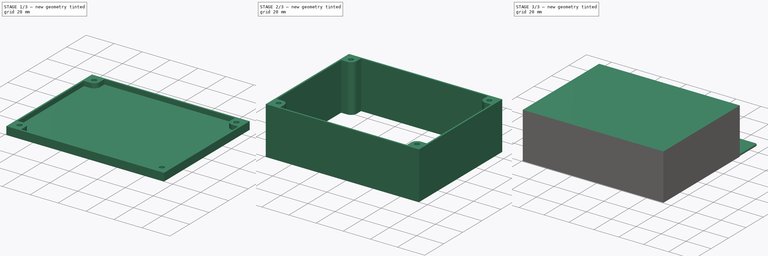
[diagram: build sequence overview — one tinted view per stage of 3, left to right]
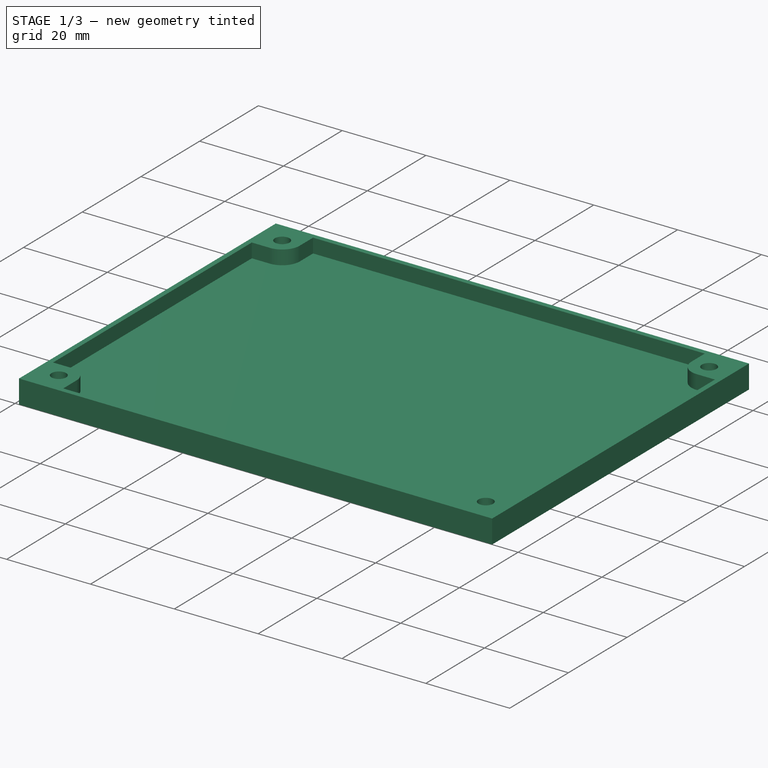
[diagram: stage 1 of 3 — iso view after this stage's code; geometry added in this stage tinted green]
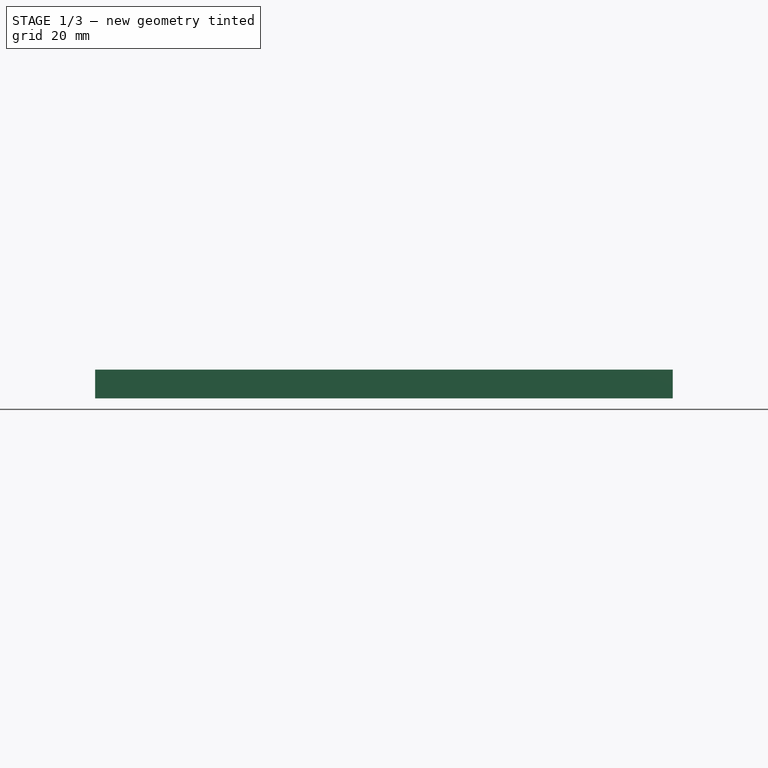
[diagram: stage 1 of 3 — front view after this stage's code; geometry added in this stage tinted green]
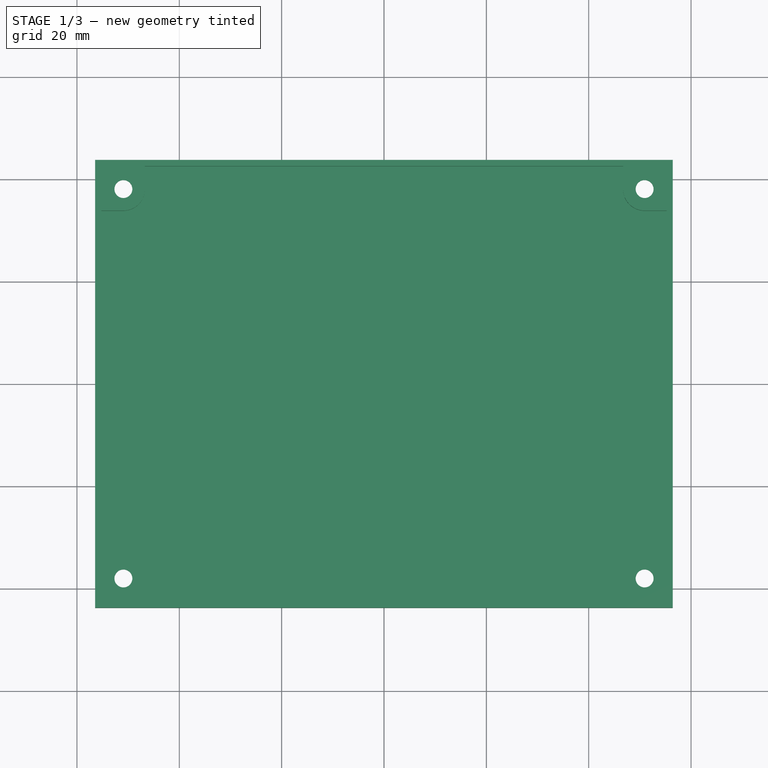
[diagram: stage 1 of 3 — top view after this stage's code; geometry added in this stage tinted green]
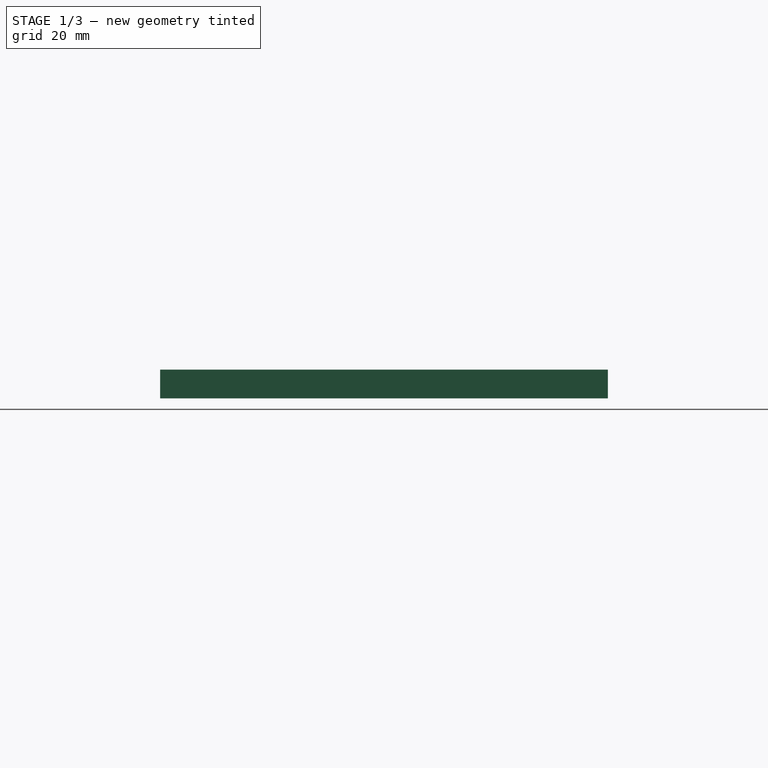
[diagram: stage 1 of 3 — right view after this stage's code; geometry added in this stage tinted green]
FCSTD DOCUMENT  (FreeCAD 0.18.1R)
Label: SKRCaseV2
License: All rights reserved
LicenseURL: http://en.wikipedia.org/wiki/All_rights_reserved
objects: Sketcher::SketchObject×8, PartDesign::Pad×7, Spreadsheet::Sheet×2, PartDesign::Body×2, PartDesign::Fillet×1, App::Part×1
note: 25 computed .brp shape members not serialized (recipe doc carries the construction recipe); baked Part::Feature solids carry a one-line shape summary decoded from their .brp

FEATURE [Sketcher::SketchObject] Sketch  label="Base"
  MapMode = 5
  Support = -> [XY_Plane001]
  expr: Constraints[62] = Screws.M3HeadRadius
  sketch-geometry (24):
    g0: LineSegment [constr] StartX=-54.835 StartY=42.15 StartZ=0 EndX=54.835 EndY=42.15 EndZ=0
    g1: LineSegment [constr] StartX=54.835 StartY=42.15 StartZ=0 EndX=54.835 EndY=-42.15 EndZ=0
    g2: LineSegment [constr] StartX=54.835 StartY=-42.15 StartZ=0 EndX=-54.835 EndY=-42.15 EndZ=0
    g3: LineSegment [constr] StartX=-54.835 StartY=-42.15 StartZ=0 EndX=-54.835 EndY=42.15 EndZ=0
    g4: LineSegment [constr] StartX=-55.235 StartY=42.55 StartZ=0 EndX=55.235 EndY=42.55 EndZ=0
    g5: LineSegment [constr] StartX=55.235 StartY=42.55 StartZ=0 EndX=55.235 EndY=-42.55 EndZ=0
    g6: LineSegment [constr] StartX=55.235 StartY=-42.55 StartZ=0 EndX=-55.235 EndY=-42.55 EndZ=0
    g7: LineSegment [constr] StartX=-55.235 StartY=-42.55 StartZ=0 EndX=-55.235 EndY=42.55 EndZ=0
    g8: LineSegment [constr] StartX=54.835 StartY=-42.15 StartZ=0 EndX=55.235 EndY=-42.15 EndZ=0
    g9: LineSegment [constr] StartX=54.835 StartY=-42.15 StartZ=0 EndX=54.835 EndY=-42.55 EndZ=0
    g10: LineSegment [constr] StartX=-54.835 StartY=42.15 StartZ=0 EndX=-54.835 EndY=42.55 EndZ=0
    g11: LineSegment [constr] StartX=-54.835 StartY=42.15 StartZ=0 EndX=-55.235 EndY=42.15 EndZ=0
    g12: LineSegment StartX=-56.435 StartY=43.75 StartZ=0 EndX=56.435 EndY=43.75 EndZ=0
    g13: LineSegment StartX=56.435 StartY=43.75 StartZ=0 EndX=56.435 EndY=-43.75 EndZ=0
    g14: LineSegment StartX=56.435 StartY=-43.75 StartZ=0 EndX=-56.435 EndY=-43.75 EndZ=0
    g15: LineSegment StartX=-56.435 StartY=-43.75 StartZ=0 EndX=-56.435 EndY=43.75 EndZ=0
    g16: LineSegment [constr] StartX=55.235 StartY=-42.55 StartZ=0 EndX=56.435 EndY=-42.55 EndZ=0
    g17: LineSegment [constr] StartX=55.235 StartY=-42.55 StartZ=0 EndX=55.235 EndY=-43.75 EndZ=0
    g18: LineSegment [constr] StartX=-55.235 StartY=42.55 StartZ=0 EndX=-55.235 EndY=43.75 EndZ=0
    g19: LineSegment [constr] StartX=-55.235 StartY=42.55 StartZ=0 EndX=-56.435 EndY=42.55 EndZ=0
    g20: Circle CenterX=-50.925 CenterY=38.05 CenterZ=0 NormalX=0 NormalY=0 NormalZ=1 AngleXU=0 Radius=3
    g21: Circle CenterX=50.925 CenterY=38.05 CenterZ=0 NormalX=0 NormalY=0 NormalZ=1 AngleXU=0 Radius=3
    g22: Circle CenterX=50.925 CenterY=-38.05 CenterZ=0 NormalX=0 NormalY=0 NormalZ=1 AngleXU=0 Radius=3
    g23: Circle CenterX=-50.925 CenterY=-38.05 CenterZ=0 NormalX=0 NormalY=0 NormalZ=1 AngleXU=0 Radius=3
  constraints (68):
    c: Coincident(g0,g1)
    c: Coincident(g1,g2)
    c: Coincident(g2,g3)
    c: Coincident(g3,g0)
    c: Horizontal(g0)
    c: Horizontal(g2)
    c: Vertical(g1)
    c: Vertical(g3)
    c: Symmetric(g0,g1,g-1)
    c: DistanceX(g0,g0) = 109.67  'PCBWidth'
    c: DistanceY(g3,g3) = 84.3  'PCBLength'
    c: Coincident(g4,g5)
    c: Coincident(g5,g6)
    c: Coincident(g6,g7)
    c: Coincident(g7,g4)
    c: Horizontal(g4)
    c: Horizontal(g6)
    c: Vertical(g5)
    c: Vertical(g7)
    c: Coincident(g8,g1)
    c: PointOnObject(g8,g5)
    c: Horizontal(g8)
    c: Coincident(g9,g1)
    c: PointOnObject(g9,g6)
    c: Vertical(g9)
    c: DistanceY(g5,g8) = 0.4  'Tolerance'
    c: Coincident(g10,g0)
    c: PointOnObject(g10,g4)
    c: Vertical(g10)
    c: Coincident(g11,g0)
    c: PointOnObject(g11,g7)
    c: Horizontal(g11)
    c: Equal(g8,g9)
    c: Equal(g9,g10)
    c: Equal(g10,g11)
    c: Coincident(g12,g13)
    c: Coincident(g13,g14)
    c: Coincident(g14,g15)
    c: Coincident(g15,g12)
    c: Horizontal(g12)
    c: Horizontal(g14)
    c: Vertical(g13)
    c: Vertical(g15)
    c: Coincident(g16,g5)
    c: PointOnObject(g16,g13)
    c: Horizontal(g16)
    c: Coincident(g17,g5)
    c: PointOnObject(g17,g14)
    c: Vertical(g17)
    c: Coincident(g18,g4)
    c: PointOnObject(g18,g12)
    c: Vertical(g18)
    c: Coincident(g19,g4)
    c: PointOnObject(g19,g15)
    c: Horizontal(g19)
    c: Equal(g16,g17)
    c: Equal(g17,g18)
    c: Equal(g18,g19)
    c: DistanceY(g17,g17) = 1.2  'WallThickness'
    c: Equal(g20,g21)
    c: Equal(g21,g22)
    c: Equal(g22,g23)
    c: Radius(g20) = 3
    c: Symmetric(g23,g20,g-1)
    c: Symmetric(g20,g21,g-2)
    c: Symmetric(g23,g22,g-2)
    c: DistanceX(g20,g21) = 101.85  'HoleDX'
    c: DistanceY(g23,g20) = 76.1  'HoleDY'
FEATURE [Spreadsheet::Sheet] Spreadsheet
FEATURE [Spreadsheet::Sheet] Spreadsheet001  label="Screws"
  cells = B4=M25Radius; C4(M25Radius)==1.45mm; B5=M25HeadRadius; C5(M25HeadRadius)==2.4mm; B6=MHeadHeight; C6(MHeadHeight)==3mm; B7=M25NutRadius; C7(M25NutRadius)==3.1mm; B8=M25NutHeight; C8(M25NutHeight)==2.2mm; B9=M3Radius; C9(M3Radius)==1.75mm; B10=M3HeadRadius; C10(M3HeadRadius)==3mm; B11=M3HeadHeight; C11(M3HeadHeight)==3.4mm; B12=M3NutRadius; C12(M3NutRadius)==3.4mm; B13=M3NutHeight; C13(M3NutHeight)==2.6mm; B14=M3NutDuctWidth; C14(M3NutDuctWidth)==6mm; B15=M4Radius; C15(M4Radius)==2.2mm; B16=M4HeadRadius; C16(M4HeadRadius)==3.7mm; B17=M4HeadHeight; C17(M4HeadHeight)==4mm; B18=M4NutRadius; C18(M4NutRadius)==4.2mm; B19=M4NutHeight; C19(M4NutHeight)==3.3mm; B20=M5Radius; C20(M5Radius)==2.66mm; B21=M5HeadRadius; C21(M5HeadRadius)==4.5mm; B22=M5HeadHeight; C22(M5HeadHeight)==5mm; B23=M5NutRadius; C23(M5NutRadius)==4.75mm; B24=M5NutHeight; C24(M5NutHeight)==4mm
FEATURE [PartDesign::Pad] Pad  label="Base_"
  Length = 2.2
  Length2 = 100
  Profile = -> Sketch
  Type = 0
FEATURE [Sketcher::SketchObject] Sketch001  label="PcbSpacer"
  AttachmentOffset = pos=(0,0,2.2) rot=(0,0,1;0rad)
  MapMode = 5
  Placement = pos=(0,0,2.2) rot=(0,0,1;0rad)
  Support = -> [XY_Plane001]
  expr: Constraints[115] = Flap.Constraints.Tolerance
  expr: Constraints[9] = Flap.Constraints.PCBWidth
  expr: Constraints[64] = Screws.M3HeadRadius + 1.2mm
  expr: Constraints[51] = Flap.Constraints.HoleDX
  expr: AttachmentOffset.Base.z = Base_.Length
  expr: Constraints[52] = Flap.Constraints.HoleDY
  expr: Constraints[10] = Flap.Constraints.PCBLength
  expr: Constraints[47] = Screws.M3HeadRadius
  expr: Constraints[43] = Flap.Constraints.WallThickness
  sketch-geometry (48):
    g0: LineSegment [constr] StartX=-54.835 StartY=42.15 StartZ=0 EndX=54.835 EndY=42.15 EndZ=0
    g1: LineSegment [constr] StartX=54.835 StartY=42.15 StartZ=0 EndX=54.835 EndY=-42.15 EndZ=0
    g2: LineSegment [constr] StartX=54.835 StartY=-42.15 StartZ=0 EndX=-54.835 EndY=-42.15 EndZ=0
    g3: LineSegment [constr] StartX=-54.835 StartY=-42.15 StartZ=0 EndX=-54.835 EndY=42.15 EndZ=0
    g4: LineSegment StartX=55.235 StartY=33.85 StartZ=0 EndX=55.235 EndY=-33.85 EndZ=0
    g5: LineSegment StartX=-55.235 StartY=-33.85 StartZ=0 EndX=-55.235 EndY=33.85 EndZ=0
    g6: LineSegment [constr] StartX=54.835 StartY=-42.15 StartZ=0 EndX=55.235 EndY=-42.15 EndZ=0
    g7: LineSegment [constr] StartX=54.835 StartY=-42.15 StartZ=0 EndX=54.835 EndY=-42.55 EndZ=0
    g8: LineSegment [constr] StartX=-54.835 StartY=42.15 StartZ=0 EndX=-54.835 EndY=42.55 EndZ=0
    g9: LineSegment [constr] StartX=-54.835 StartY=42.15 StartZ=0 EndX=-55.235 EndY=42.15 EndZ=0
    g10: LineSegment StartX=-56.435 StartY=43.75 StartZ=0 EndX=56.435 EndY=43.75 EndZ=0
    g11: LineSegment StartX=56.435 StartY=43.75 StartZ=0 EndX=56.435 EndY=-43.75 EndZ=0
    g12: LineSegment StartX=56.435 StartY=-43.75 StartZ=0 EndX=-56.435 EndY=-43.75 EndZ=0
    g13: LineSegment StartX=-56.435 StartY=-43.75 StartZ=0 EndX=-56.435 EndY=43.75 EndZ=0
    g14: LineSegment [constr] StartX=55.235 StartY=-42.55 StartZ=0 EndX=56.435 EndY=-42.55 EndZ=0
    g15: LineSegment [constr] StartX=55.235 StartY=-42.55 StartZ=0 EndX=55.235 EndY=-43.75 EndZ=0
    g16: LineSegment [constr] StartX=-55.235 StartY=42.55 StartZ=0 EndX=-55.235 EndY=43.75 EndZ=0
    g17: LineSegment [constr] StartX=-55.235 StartY=42.55 StartZ=0 EndX=-56.435 EndY=42.55 EndZ=0
    g18: Circle CenterX=-50.925 CenterY=38.05 CenterZ=0 NormalX=0 NormalY=0 NormalZ=1 AngleXU=0 Radius=3
    g19: Circle CenterX=50.925 CenterY=38.05 CenterZ=0 NormalX=0 NormalY=0 NormalZ=1 AngleXU=0 Radius=3
    g20: Circle CenterX=50.925 CenterY=-38.05 CenterZ=0 NormalX=0 NormalY=0 NormalZ=1 AngleXU=0 Radius=3
    g21: Circle CenterX=-50.925 CenterY=-38.05 CenterZ=0 NormalX=0 NormalY=0 NormalZ=1 AngleXU=0 Radius=3
    g22: LineSegment StartX=-55.235 StartY=33.85 StartZ=0 EndX=-50.925 EndY=33.85 EndZ=0
    g23: LineSegment StartX=-46.725 StartY=42.55 StartZ=0 EndX=-46.725 EndY=38.05 EndZ=0
    g24: ArcOfCircle CenterX=-50.925 CenterY=38.05 CenterZ=0 NormalX=0 NormalY=0 NormalZ=1 AngleXU=0 Radius=4.2 StartAngle=4.71239 EndAngle=6.28319
    g25: LineSegment [constr] StartX=-50.925 StartY=38.05 StartZ=0 EndX=-46.725 EndY=38.05 EndZ=0
    g26: LineSegment [constr] StartX=-50.925 StartY=38.05 StartZ=0 EndX=-50.925 EndY=33.85 EndZ=0
    g27: LineSegment StartX=-46.725 StartY=42.55 StartZ=0 EndX=46.725 EndY=42.55 EndZ=0
    g28: LineSegment [constr] StartX=-55.235 StartY=33.85 StartZ=0 EndX=-55.235 EndY=42.55 EndZ=0
    g29: LineSegment [constr] StartX=-55.235 StartY=42.55 StartZ=0 EndX=-46.725 EndY=42.55 EndZ=0
    g30: ArcOfCircle CenterX=50.925 CenterY=38.05 CenterZ=0 NormalX=0 NormalY=0 NormalZ=1 AngleXU=0 Radius=4.2 StartAngle=3.14159 EndAngle=4.71239
    g31: LineSegment [constr] StartX=46.725 StartY=38.05 StartZ=0 EndX=50.925 EndY=38.05 EndZ=0
    g32: LineSegment [constr] StartX=50.925 StartY=33.85 StartZ=0 EndX=50.925 EndY=38.05 EndZ=0
    g33: LineSegment StartX=46.725 StartY=38.05 StartZ=0 EndX=46.725 EndY=42.55 EndZ=0
    g34: LineSegment StartX=50.925 StartY=33.85 StartZ=0 EndX=55.235 EndY=33.85 EndZ=0
    g35: ArcOfCircle CenterX=50.925 CenterY=-38.05 CenterZ=0 NormalX=0 NormalY=0 NormalZ=1 AngleXU=0 Radius=4.2 StartAngle=1.5708 EndAngle=3.14159
    g36: LineSegment StartX=50.925 StartY=-33.85 StartZ=0 EndX=55.235 EndY=-33.85 EndZ=0
    g37: LineSegment StartX=46.725 StartY=-38.05 StartZ=0 EndX=46.725 EndY=-42.55 EndZ=0
    g38: LineSegment StartX=46.725 StartY=-42.55 StartZ=0 EndX=-46.725 EndY=-42.55 EndZ=0
    g39: LineSegment [constr] StartX=46.725 StartY=-42.55 StartZ=0 EndX=55.235 EndY=-42.55 EndZ=0
    g40: LineSegment [constr] StartX=55.235 StartY=-42.55 StartZ=0 EndX=55.235 EndY=-33.85 EndZ=0
    g41: LineSegment [constr] StartX=50.925 StartY=-38.05 StartZ=0 EndX=50.925 EndY=-33.85 EndZ=0
    g42: LineSegment [constr] StartX=50.925 StartY=-38.05 StartZ=0 EndX=46.725 EndY=-38.05 EndZ=0
    g43: ArcOfCircle CenterX=-50.925 CenterY=-38.05 CenterZ=0 NormalX=0 NormalY=0 NormalZ=1 AngleXU=0 Radius=4.2 StartAngle=0 EndAngle=1.5708
    g44: LineSegment StartX=-50.925 StartY=-33.85 StartZ=0 EndX=-55.235 EndY=-33.85 EndZ=0
    g45: LineSegment StartX=-46.725 StartY=-38.05 StartZ=0 EndX=-46.725 EndY=-42.55 EndZ=0
    g46: LineSegment [constr] StartX=-50.925 StartY=-38.05 StartZ=0 EndX=-50.925 EndY=-33.85 EndZ=0
    g47: LineSegment [constr] StartX=-50.925 StartY=-38.05 StartZ=0 EndX=-46.725 EndY=-38.05 EndZ=0
  constraints (130):
    c: Coincident(g0,g1)
    c: Coincident(g1,g2)
    c: Coincident(g2,g3)
    c: Coincident(g3,g0)
    c: Horizontal(g0)
    c: Horizontal(g2)
    c: Vertical(g1)
    c: Vertical(g3)
    c: Symmetric(g0,g1,g-1)
    c: DistanceX(g0,g0) = 109.67
    c: DistanceY(g3,g3) = 84.3
    c: Vertical(g4)
    c: Vertical(g5)
    c: Coincident(g6,g1)
    c: Horizontal(g6)
    c: Coincident(g7,g1)
    c: Vertical(g7)
    c: Coincident(g8,g0)
    c: Vertical(g8)
    c: Coincident(g9,g0)
    c: Horizontal(g9)
    c: Equal(g6,g7)
    c: Equal(g7,g8)
    c: Equal(g8,g9)
    c: Coincident(g10,g11)
    c: Coincident(g11,g12)
    c: Coincident(g12,g13)
    c: Coincident(g13,g10)
    c: Horizontal(g10)
    c: Horizontal(g12)
    c: Vertical(g11)
    c: Vertical(g13)
    c: PointOnObject(g14,g11)
    c: Horizontal(g14)
    c: PointOnObject(g15,g12)
    c: Vertical(g15)
    c: PointOnObject(g16,g10)
    c: Vertical(g16)
    c: PointOnObject(g17,g13)
    c: Horizontal(g17)
    c: Equal(g14,g15)
    c: Equal(g15,g16)
    c: Equal(g16,g17)
    c: DistanceY(g15,g15) = 1.2
    c: Equal(g18,g19)
    c: Equal(g19,g20)
    c: Equal(g20,g21)
    c: Radius(g18) = 3
    c: Symmetric(g21,g18,g-1)
    c: Symmetric(g18,g19,g-2)
    c: Symmetric(g21,g20,g-2)
    c: DistanceX(g18,g19) = 101.85
    c: DistanceY(g21,g18) = 76.1
    c: Horizontal(g22)
    c: Vertical(g23)
    c: Coincident(g24,g18)
    c: Coincident(g24,g22)
    c: Coincident(g24,g23)
    c: Coincident(g25,g24)
    c: Coincident(g25,g23)
    c: Horizontal(g25)
    c: Coincident(g26,g24)
    c: Coincident(g26,g22)
    c: Vertical(g26)
    c: Radius(g24) = 4.2
    c: Coincident(g5,g22)
    c: Coincident(g27,g23)
    c: Coincident(g28,g5)
    c: Coincident(g28,g16)
    c: Vertical(g28)
    c: Coincident(g29,g16)
    c: Coincident(g29,g23)
    c: Horizontal(g29)
    c: PointOnObject(g8,g29)
    c: PointOnObject(g9,g28)
    c: Coincident(g16,g17)
    c: Horizontal(g27)
    c: Coincident(g30,g19)
    c: Equal(g30,g24)
    c: Coincident(g31,g30)
    c: Coincident(g31,g30)
    c: Horizontal(g31)
    c: Coincident(g32,g30)
    c: Coincident(g32,g30)
    c: Vertical(g32)
    c: Coincident(g33,g30)
    c: Vertical(g33)
    c: Coincident(g34,g30)
    c: Horizontal(g34)
    c: Coincident(g27,g33)
    c: Coincident(g4,g34)
    c: Coincident(g35,g20)
    c: Coincident(g36,g35)
    c: Horizontal(g36)
    c: Coincident(g37,g35)
    c: Vertical(g37)
    c: Equal(g30,g35)
    c: Coincident(g4,g36)
    c: Coincident(g39,g37)
    c: Coincident(g39,g14)
    c: Horizontal(g39)
    c: PointOnObject(g7,g39)
    c: Coincident(g14,g15)
    c: Coincident(g40,g14)
    c: Coincident(g40,g4)
    c: Vertical(g40)
    c: PointOnObject(g6,g40)
    c: Horizontal(g38)
    c: Coincident(g41,g35)
    c: Coincident(g41,g35)
    c: Vertical(g41)
    c: Coincident(g42,g35)
    c: Coincident(g42,g35)
    c: Horizontal(g42)
    c: Coincident(g37,g38)
    c: DistanceY(g14,g6) = 0.4
    c: Coincident(g43,g21)
    c: Coincident(g44,g43)
    c: Horizontal(g44)
    c: Coincident(g45,g43)
    c: Vertical(g45)
    c: Equal(g43,g35)
    c: Coincident(g46,g43)
    c: Coincident(g46,g43)
    c: Vertical(g46)
    c: Coincident(g47,g43)
    c: Coincident(g47,g43)
    c: Horizontal(g47)
    c: Coincident(g5,g44)
    c: Coincident(g38,g45)
FEATURE [Sketcher::SketchObject] Sketch002  label="PCBWalls"
  AttachmentOffset = pos=(0,0,5.6) rot=(0,0,1;0rad)
  MapMode = 5
  Placement = pos=(0,0,5.6) rot=(0,0,1;0rad)
  Support = -> [XY_Plane001]
  expr: AttachmentOffset.Base.z = PcbHolder.AttachmentOffset.Base.z + PcbHolder_.Length
  expr: Constraints[58] = Flap.Constraints.WallThickness
  expr: Constraints[9] = Flap.Constraints.PCBWidth
  expr: Constraints[25] = Flap.Constraints.Tolerance
  expr: Constraints[66] = Flap.Constraints.HoleDX
  expr: Constraints[10] = Flap.Constraints.PCBLength
  expr: Constraints[67] = Flap.Constraints.HoleDY
  expr: Constraints[62] = Screws.M3HeadRadius
  sketch-geometry (24):
    g0: LineSegment [constr] StartX=-54.835 StartY=42.15 StartZ=0 EndX=54.835 EndY=42.15 EndZ=0
    g1: LineSegment [constr] StartX=54.835 StartY=42.15 StartZ=0 EndX=54.835 EndY=-42.15 EndZ=0
    g2: LineSegment [constr] StartX=54.835 StartY=-42.15 StartZ=0 EndX=-54.835 EndY=-42.15 EndZ=0
    g3: LineSegment [constr] StartX=-54.835 StartY=-42.15 StartZ=0 EndX=-54.835 EndY=42.15 EndZ=0
    g4: LineSegment StartX=-55.235 StartY=42.55 StartZ=0 EndX=55.235 EndY=42.55 EndZ=0
    g5: LineSegment StartX=55.235 StartY=42.55 StartZ=0 EndX=55.235 EndY=-42.55 EndZ=0
    g6: LineSegment StartX=55.235 StartY=-42.55 StartZ=0 EndX=-55.235 EndY=-42.55 EndZ=0
    g7: LineSegment StartX=-55.235 StartY=-42.55 StartZ=0 EndX=-55.235 EndY=42.55 EndZ=0
    g8: LineSegment [constr] StartX=54.835 StartY=-42.15 StartZ=0 EndX=55.235 EndY=-42.15 EndZ=0
    g9: LineSegment [constr] StartX=54.835 StartY=-42.15 StartZ=0 EndX=54.835 EndY=-42.55 EndZ=0
    g10: LineSegment [constr] StartX=-54.835 StartY=42.15 StartZ=0 EndX=-54.835 EndY=42.55 EndZ=0
    g11: LineSegment [constr] StartX=-54.835 StartY=42.15 StartZ=0 EndX=-55.235 EndY=42.15 EndZ=0
    g12: LineSegment StartX=-56.435 StartY=43.75 StartZ=0 EndX=56.435 EndY=43.75 EndZ=0
    g13: LineSegment StartX=56.435 StartY=43.75 StartZ=0 EndX=56.435 EndY=-43.75 EndZ=0
    g14: LineSegment StartX=56.435 StartY=-43.75 StartZ=0 EndX=-56.435 EndY=-43.75 EndZ=0
    g15: LineSegment StartX=-56.435 StartY=-43.75 StartZ=0 EndX=-56.435 EndY=43.75 EndZ=0
    g16: LineSegment [constr] StartX=55.235 StartY=-42.55 StartZ=0 EndX=56.435 EndY=-42.55 EndZ=0
    g17: LineSegment [constr] StartX=55.235 StartY=-42.55 StartZ=0 EndX=55.235 EndY=-43.75 EndZ=0
    g18: LineSegment [constr] StartX=-55.235 StartY=42.55 StartZ=0 EndX=-55.235 EndY=43.75 EndZ=0
    g19: LineSegment [constr] StartX=-55.235 StartY=42.55 StartZ=0 EndX=-56.435 EndY=42.55 EndZ=0
    g20: Circle [constr] CenterX=-50.925 CenterY=38.05 CenterZ=0 NormalX=0 NormalY=0 NormalZ=1 AngleXU=0 Radius=3
    g21: Circle [constr] CenterX=50.925 CenterY=38.05 CenterZ=0 NormalX=0 NormalY=0 NormalZ=1 AngleXU=0 Radius=3
    g22: Circle [constr] CenterX=50.925 CenterY=-38.05 CenterZ=0 NormalX=0 NormalY=0 NormalZ=1 AngleXU=0 Radius=3
    g23: Circle [constr] CenterX=-50.925 CenterY=-38.05 CenterZ=0 NormalX=0 NormalY=0 NormalZ=1 AngleXU=0 Radius=3
  constraints (68):
    c: Coincident(g0,g1)
    c: Coincident(g1,g2)
    c: Coincident(g2,g3)
    c: Coincident(g3,g0)
    c: Horizontal(g0)
    c: Horizontal(g2)
    c: Vertical(g1)
    c: Vertical(g3)
    c: Symmetric(g0,g1,g-1)
    c: DistanceX(g0,g0) = 109.67
    c: DistanceY(g3,g3) = 84.3
    c: Coincident(g4,g5)
    c: Coincident(g5,g6)
    c: Coincident(g6,g7)
    c: Coincident(g7,g4)
    c: Horizontal(g4)
    c: Horizontal(g6)
    c: Vertical(g5)
    c: Vertical(g7)
    c: Coincident(g8,g1)
    c: PointOnObject(g8,g5)
    c: Horizontal(g8)
    c: Coincident(g9,g1)
    c: PointOnObject(g9,g6)
    c: Vertical(g9)
    c: DistanceY(g5,g8) = 0.4
    c: Coincident(g10,g0)
    c: PointOnObject(g10,g4)
    c: Vertical(g10)
    c: Coincident(g11,g0)
    c: PointOnObject(g11,g7)
    c: Horizontal(g11)
    c: Equal(g8,g9)
    c: Equal(g9,g10)
    c: Equal(g10,g11)
    c: Coincident(g12,g13)
    c: Coincident(g13,g14)
    c: Coincident(g14,g15)
    c: Coincident(g15,g12)
    c: Horizontal(g12)
    c: Horizontal(g14)
    c: Vertical(g13)
    c: Vertical(g15)
    c: Coincident(g16,g5)
    c: PointOnObject(g16,g13)
    c: Horizontal(g16)
    c: Coincident(g17,g5)
    c: PointOnObject(g17,g14)
    c: Vertical(g17)
    c: Coincident(g18,g4)
    c: PointOnObject(g18,g12)
    c: Vertical(g18)
    c: Coincident(g19,g4)
    c: PointOnObject(g19,g15)
    c: Horizontal(g19)
    c: Equal(g16,g17)
    c: Equal(g17,g18)
    c: Equal(g18,g19)
    c: DistanceY(g17,g17) = 1.2
    c: Equal(g20,g21)
    c: Equal(g21,g22)
    c: Equal(g22,g23)
    c: Radius(g20) = 3
    c: Symmetric(g23,g20,g-1)
    c: Symmetric(g20,g21,g-2)
    c: Symmetric(g23,g22,g-2)
    c: DistanceX(g20,g21) = 101.85
    c: DistanceY(g23,g20) = 76.1
FEATURE [PartDesign::Pad] Pad001  label="PcbSpacer_"
  BaseFeature = -> Pad
  Length = 2.2
  Length2 = 100
  Profile = -> Sketch001
  Type = 0
FEATURE [Sketcher::SketchObject] Sketch003  label="PcbHolder"
  AttachmentOffset = pos=(0,0,4.4) rot=(0,0,1;0rad)
  MapMode = 5
  Placement = pos=(0,0,4.4) rot=(0,0,1;0rad)
  Support = -> [XY_Plane001]
  expr: AttachmentOffset.Base.z = PcbSpacer.AttachmentOffset.Base.z + PcbSpacer_.Length
  expr: Constraints[52] = Flap.Constraints.HoleDY
  expr: Constraints[9] = Flap.Constraints.PCBWidth
  expr: Constraints[64] = Screws.M3HeadRadius + 1.2mm
  expr: Constraints[51] = Flap.Constraints.HoleDX
  expr: Constraints[115] = Flap.Constraints.Tolerance
  expr: Constraints[10] = Flap.Constraints.PCBLength
  expr: Constraints[47] = Screws.M3Radius
  expr: Constraints[43] = Flap.Constraints.WallThickness
  sketch-geometry (48):
    g0: LineSegment [constr] StartX=-54.835 StartY=42.15 StartZ=0 EndX=54.835 EndY=42.15 EndZ=0
    g1: LineSegment [constr] StartX=54.835 StartY=42.15 StartZ=0 EndX=54.835 EndY=-42.15 EndZ=0
    g2: LineSegment [constr] StartX=54.835 StartY=-42.15 StartZ=0 EndX=-54.835 EndY=-42.15 EndZ=0
    g3: LineSegment [constr] StartX=-54.835 StartY=-42.15 StartZ=0 EndX=-54.835 EndY=42.15 EndZ=0
    g4: LineSegment StartX=55.235 StartY=33.85 StartZ=0 EndX=55.235 EndY=-33.85 EndZ=0
    g5: LineSegment StartX=-55.235 StartY=-33.85 StartZ=0 EndX=-55.235 EndY=33.85 EndZ=0
    g6: LineSegment [constr] StartX=54.835 StartY=-42.15 StartZ=0 EndX=55.235 EndY=-42.15 EndZ=0
    g7: LineSegment [constr] StartX=54.835 StartY=-42.15 StartZ=0 EndX=54.835 EndY=-42.55 EndZ=0
    g8: LineSegment [constr] StartX=-54.835 StartY=42.15 StartZ=0 EndX=-54.835 EndY=42.55 EndZ=0
    g9: LineSegment [constr] StartX=-54.835 StartY=42.15 StartZ=0 EndX=-55.235 EndY=42.15 EndZ=0
    g10: LineSegment StartX=-56.435 StartY=43.75 StartZ=0 EndX=56.435 EndY=43.75 EndZ=0
    g11: LineSegment StartX=56.435 StartY=43.75 StartZ=0 EndX=56.435 EndY=-43.75 EndZ=0
    g12: LineSegment StartX=56.435 StartY=-43.75 StartZ=0 EndX=-56.435 EndY=-43.75 EndZ=0
    g13: LineSegment StartX=-56.435 StartY=-43.75 StartZ=0 EndX=-56.435 EndY=43.75 EndZ=0
    g14: LineSegment [constr] StartX=55.235 StartY=-42.55 StartZ=0 EndX=56.435 EndY=-42.55 EndZ=0
    g15: LineSegment [constr] StartX=55.235 StartY=-42.55 StartZ=0 EndX=55.235 EndY=-43.75 EndZ=0
    g16: LineSegment [constr] StartX=-55.235 StartY=42.55 StartZ=0 EndX=-55.235 EndY=43.75 EndZ=0
    g17: LineSegment [constr] StartX=-55.235 StartY=42.55 StartZ=0 EndX=-56.435 EndY=42.55 EndZ=0
    g18: Circle CenterX=-50.925 CenterY=38.05 CenterZ=0 NormalX=0 NormalY=0 NormalZ=1 AngleXU=0 Radius=1.75
    g19: Circle CenterX=50.925 CenterY=38.05 CenterZ=0 NormalX=0 NormalY=0 NormalZ=1 AngleXU=0 Radius=1.75
    g20: Circle CenterX=50.925 CenterY=-38.05 CenterZ=0 NormalX=0 NormalY=0 NormalZ=1 AngleXU=0 Radius=1.75
    g21: Circle CenterX=-50.925 CenterY=-38.05 CenterZ=0 NormalX=0 NormalY=0 NormalZ=1 AngleXU=0 Radius=1.75
    g22: LineSegment StartX=-55.235 StartY=33.85 StartZ=0 EndX=-50.925 EndY=33.85 EndZ=0
    g23: LineSegment StartX=-46.725 StartY=42.55 StartZ=0 EndX=-46.725 EndY=38.05 EndZ=0
    g24: ArcOfCircle CenterX=-50.925 CenterY=38.05 CenterZ=0 NormalX=0 NormalY=0 NormalZ=1 AngleXU=0 Radius=4.2 StartAngle=4.71239 EndAngle=6.28319
    g25: LineSegment [constr] StartX=-50.925 StartY=38.05 StartZ=0 EndX=-46.725 EndY=38.05 EndZ=0
    g26: LineSegment [constr] StartX=-50.925 StartY=38.05 StartZ=0 EndX=-50.925 EndY=33.85 EndZ=0
    g27: LineSegment StartX=-46.725 StartY=42.55 StartZ=0 EndX=46.725 EndY=42.55 EndZ=0
    g28: LineSegment [constr] StartX=-55.235 StartY=33.85 StartZ=0 EndX=-55.235 EndY=42.55 EndZ=0
    g29: LineSegment [constr] StartX=-55.235 StartY=42.55 StartZ=0 EndX=-46.725 EndY=42.55 EndZ=0
    g30: ArcOfCircle CenterX=50.925 CenterY=38.05 CenterZ=0 NormalX=0 NormalY=0 NormalZ=1 AngleXU=0 Radius=4.2 StartAngle=3.14159 EndAngle=4.71239
    g31: LineSegment [constr] StartX=46.725 StartY=38.05 StartZ=0 EndX=50.925 EndY=38.05 EndZ=0
    g32: LineSegment [constr] StartX=50.925 StartY=33.85 StartZ=0 EndX=50.925 EndY=38.05 EndZ=0
    g33: LineSegment StartX=46.725 StartY=38.05 StartZ=0 EndX=46.725 EndY=42.55 EndZ=0
    g34: LineSegment StartX=50.925 StartY=33.85 StartZ=0 EndX=55.235 EndY=33.85 EndZ=0
    g35: ArcOfCircle CenterX=50.925 CenterY=-38.05 CenterZ=0 NormalX=0 NormalY=0 NormalZ=1 AngleXU=0 Radius=4.2 StartAngle=1.5708 EndAngle=3.14159
    g36: LineSegment StartX=50.925 StartY=-33.85 StartZ=0 EndX=55.235 EndY=-33.85 EndZ=0
    g37: LineSegment StartX=46.725 StartY=-38.05 StartZ=0 EndX=46.725 EndY=-42.55 EndZ=0
    g38: LineSegment StartX=46.725 StartY=-42.55 StartZ=0 EndX=-46.725 EndY=-42.55 EndZ=0
    g39: LineSegment [constr] StartX=46.725 StartY=-42.55 StartZ=0 EndX=55.235 EndY=-42.55 EndZ=0
    g40: LineSegment [constr] StartX=55.235 StartY=-42.55 StartZ=0 EndX=55.235 EndY=-33.85 EndZ=0
    g41: LineSegment [constr] StartX=50.925 StartY=-38.05 StartZ=0 EndX=50.925 EndY=-33.85 EndZ=0
    g42: LineSegment [constr] StartX=50.925 StartY=-38.05 StartZ=0 EndX=46.725 EndY=-38.05 EndZ=0
    g43: ArcOfCircle CenterX=-50.925 CenterY=-38.05 CenterZ=0 NormalX=0 NormalY=0 NormalZ=1 AngleXU=0 Radius=4.2 StartAngle=0 EndAngle=1.5708
    g44: LineSegment StartX=-50.925 StartY=-33.85 StartZ=0 EndX=-55.235 EndY=-33.85 EndZ=0
    g45: LineSegment StartX=-46.725 StartY=-38.05 StartZ=0 EndX=-46.725 EndY=-42.55 EndZ=0
    g46: LineSegment [constr] StartX=-50.925 StartY=-38.05 StartZ=0 EndX=-50.925 EndY=-33.85 EndZ=0
    g47: LineSegment [constr] StartX=-50.925 StartY=-38.05 StartZ=0 EndX=-46.725 EndY=-38.05 EndZ=0
  constraints (130):
    c: Coincident(g0,g1)
    c: Coincident(g1,g2)
    c: Coincident(g2,g3)
    c: Coincident(g3,g0)
    c: Horizontal(g0)
    c: Horizontal(g2)
    c: Vertical(g1)
    c: Vertical(g3)
    c: Symmetric(g0,g1,g-1)
    c: DistanceX(g0,g0) = 109.67
    c: DistanceY(g3,g3) = 84.3
    c: Vertical(g4)
    c: Vertical(g5)
    c: Coincident(g6,g1)
    c: Horizontal(g6)
    c: Coincident(g7,g1)
    c: Vertical(g7)
    c: Coincident(g8,g0)
    c: Vertical(g8)
    c: Coincident(g9,g0)
    c: Horizontal(g9)
    c: Equal(g6,g7)
    c: Equal(g7,g8)
    c: Equal(g8,g9)
    c: Coincident(g10,g11)
    c: Coincident(g11,g12)
    c: Coincident(g12,g13)
    c: Coincident(g13,g10)
    c: Horizontal(g10)
    c: Horizontal(g12)
    c: Vertical(g11)
    c: Vertical(g13)
    c: PointOnObject(g14,g11)
    c: Horizontal(g14)
    c: PointOnObject(g15,g12)
    c: Vertical(g15)
    c: PointOnObject(g16,g10)
    c: Vertical(g16)
    c: PointOnObject(g17,g13)
    c: Horizontal(g17)
    c: Equal(g14,g15)
    c: Equal(g15,g16)
    c: Equal(g16,g17)
    c: DistanceY(g15,g15) = 1.2
    c: Equal(g18,g19)
    c: Equal(g19,g20)
    c: Equal(g20,g21)
    c: Radius(g18) = 1.75
    c: Symmetric(g21,g18,g-1)
    c: Symmetric(g18,g19,g-2)
    c: Symmetric(g21,g20,g-2)
    c: DistanceX(g18,g19) = 101.85
    c: DistanceY(g21,g18) = 76.1
    c: Horizontal(g22)
    c: Vertical(g23)
    c: Coincident(g24,g18)
    c: Coincident(g24,g22)
    c: Coincident(g24,g23)
    c: Coincident(g25,g24)
    c: Coincident(g25,g23)
    c: Horizontal(g25)
    c: Coincident(g26,g24)
    c: Coincident(g26,g22)
    c: Vertical(g26)
    c: Radius(g24) = 4.2
    c: Coincident(g5,g22)
    c: Coincident(g27,g23)
    c: Coincident(g28,g5)
    c: Coincident(g28,g16)
    c: Vertical(g28)
    c: Coincident(g29,g16)
    c: Coincident(g29,g23)
    c: Horizontal(g29)
    c: PointOnObject(g8,g29)
    c: PointOnObject(g9,g28)
    c: Coincident(g16,g17)
    c: Horizontal(g27)
    c: Coincident(g30,g19)
    c: Equal(g30,g24)
    c: Coincident(g31,g30)
    c: Coincident(g31,g30)
    c: Horizontal(g31)
    c: Coincident(g32,g30)
    c: Coincident(g32,g30)
    c: Vertical(g32)
    c: Coincident(g33,g30)
    c: Vertical(g33)
    c: Coincident(g34,g30)
    c: Horizontal(g34)
    c: Coincident(g27,g33)
    c: Coincident(g4,g34)
    c: Coincident(g35,g20)
    c: Coincident(g36,g35)
    c: Horizontal(g36)
    c: Coincident(g37,g35)
    c: Vertical(g37)
    c: Equal(g30,g35)
    c: Coincident(g4,g36)
    c: Coincident(g39,g37)
    c: Coincident(g39,g14)
    c: Horizontal(g39)
    c: PointOnObject(g7,g39)
    c: Coincident(g14,g15)
    c: Coincident(g40,g14)
    c: Coincident(g40,g4)
    c: Vertical(g40)
    c: PointOnObject(g6,g40)
    c: Horizontal(g38)
    c: Coincident(g41,g35)
    c: Coincident(g41,g35)
    c: Vertical(g41)
    c: Coincident(g42,g35)
    c: Coincident(g42,g35)
    c: Horizontal(g42)
    c: Coincident(g37,g38)
    c: DistanceY(g14,g6) = 0.4
    c: Coincident(g43,g21)
    c: Coincident(g44,g43)
    c: Horizontal(g44)
    c: Coincident(g45,g43)
    c: Vertical(g45)
    c: Equal(g43,g35)
    c: Coincident(g46,g43)
    c: Coincident(g46,g43)
    c: Vertical(g46)
    c: Coincident(g47,g43)
    c: Coincident(g47,g43)
    c: Horizontal(g47)
    c: Coincident(g5,g44)
    c: Coincident(g38,g45)
FEATURE [PartDesign::Pad] Pad002  label="PcbHolder_"
  BaseFeature = -> Pad001
  Length = 1.2
  Length2 = 100
  Profile = -> Sketch003
  Type = 0
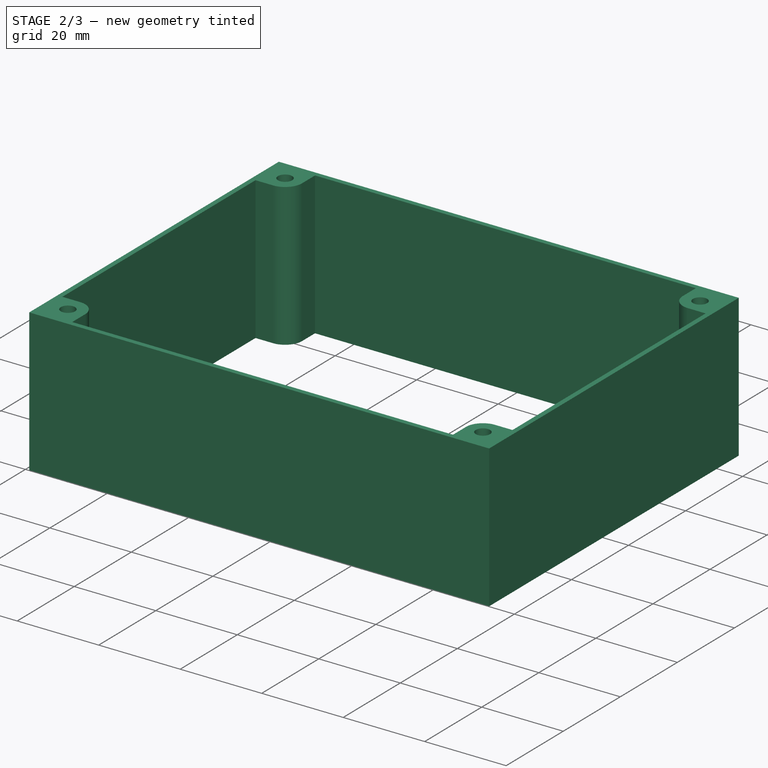
[diagram: stage 2 of 3 — iso view after this stage's code; geometry added in this stage tinted green]
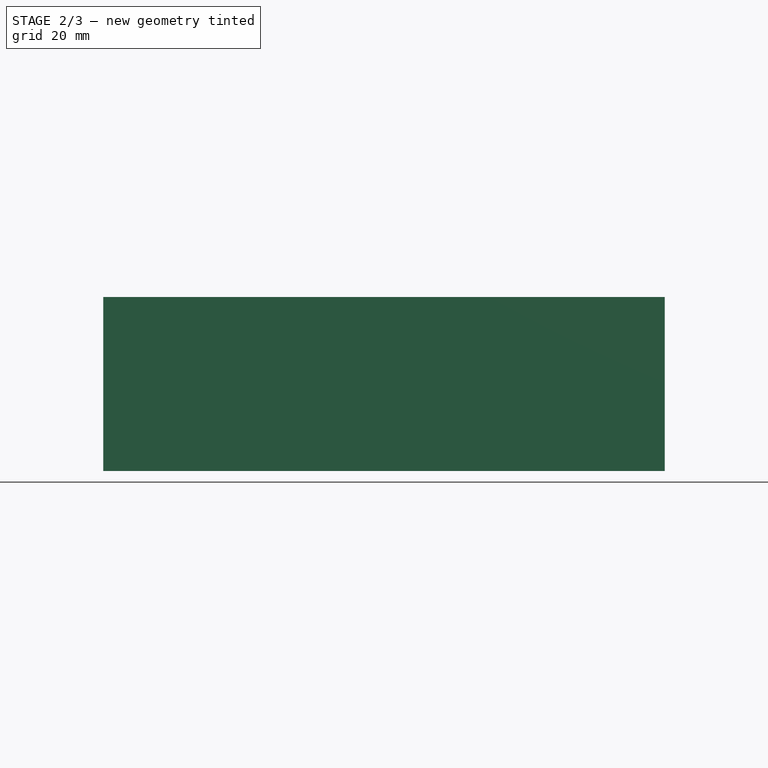
[diagram: stage 2 of 3 — front view after this stage's code; geometry added in this stage tinted green]
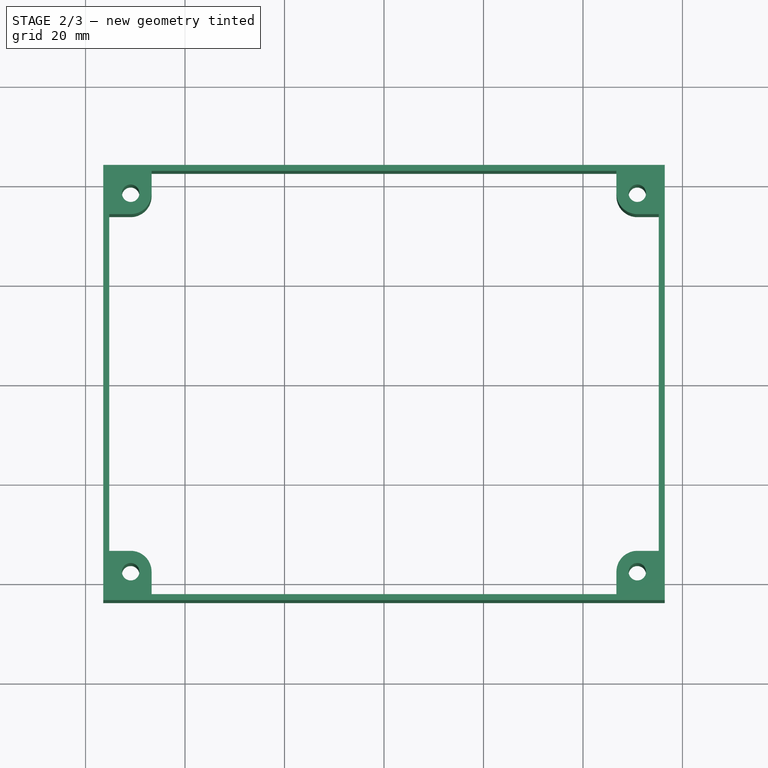
[diagram: stage 2 of 3 — top view after this stage's code; geometry added in this stage tinted green]
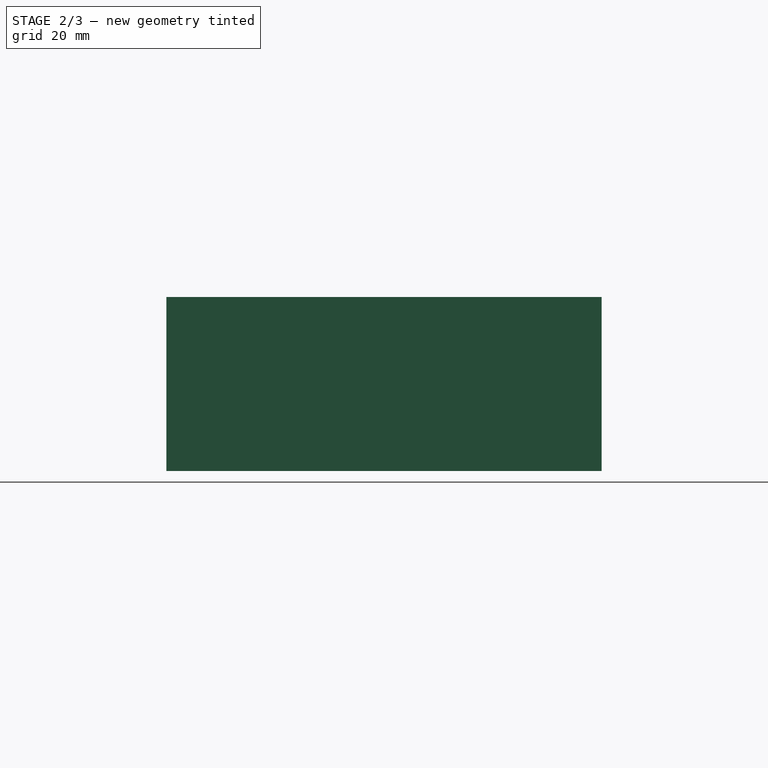
[diagram: stage 2 of 3 — right view after this stage's code; geometry added in this stage tinted green]
FEATURE [PartDesign::Pad] Pad003  label="PCBWalls_"
  BaseFeature = -> Pad002
  Length = 1.7
  Length2 = 100
  Profile = -> Sketch002
  Type = 0
FEATURE [Sketcher::SketchObject] Sketch004  label="Walls"
  AttachmentOffset = pos=(0,0,7.3) rot=(0,0,1;0rad)
  MapMode = 5
  expr: AttachmentOffset.Base.z = PCBWalls.AttachmentOffset.Base.z + PCBWalls_.Length
  expr: Constraints[52] = Flap.Constraints.HoleDY
  expr: Constraints[9] = Flap.Constraints.PCBWidth
  expr: Constraints[64] = Screws.M3HeadRadius + 1.2mm
  expr: Constraints[51] = Flap.Constraints.HoleDX
  expr: Constraints[115] = Flap.Constraints.Tolerance
  expr: Constraints[10] = Flap.Constraints.PCBLength
  expr: Constraints[47] = Screws.M3Radius
  expr: Constraints[43] = Flap.Constraints.WallThickness
  sketch-geometry (52):
    g0: LineSegment [constr] StartX=-54.835 StartY=42.15 StartZ=0 EndX=54.835 EndY=42.15 EndZ=0
    g1: LineSegment [constr] StartX=54.835 StartY=42.15 StartZ=0 EndX=54.835 EndY=-42.15 EndZ=0
    g2: LineSegment [constr] StartX=54.835 StartY=-42.15 StartZ=0 EndX=-54.835 EndY=-42.15 EndZ=0
    g3: LineSegment [constr] StartX=-54.835 StartY=-42.15 StartZ=0 EndX=-54.835 EndY=42.15 EndZ=0
    g4: LineSegment StartX=55.235 StartY=33.85 StartZ=0 EndX=55.235 EndY=-33.85 EndZ=0
    g5: LineSegment StartX=-55.235 StartY=-33.85 StartZ=0 EndX=-55.235 EndY=33.85 EndZ=0
    g6: LineSegment [constr] StartX=54.835 StartY=-42.15 StartZ=0 EndX=55.235 EndY=-42.15 EndZ=0
    g7: LineSegment [constr] StartX=54.835 StartY=-42.15 StartZ=0 EndX=54.835 EndY=-42.55 EndZ=0
    g8: LineSegment [constr] StartX=-54.835 StartY=42.15 StartZ=0 EndX=-54.835 EndY=42.55 EndZ=0
    g9: LineSegment [constr] StartX=-54.835 StartY=42.15 StartZ=0 EndX=-55.235 EndY=42.15 EndZ=0
    g10: LineSegment StartX=-56.435 StartY=43.75 StartZ=0 EndX=56.435 EndY=43.75 EndZ=0
    g11: LineSegment StartX=56.435 StartY=43.75 StartZ=0 EndX=56.435 EndY=-43.75 EndZ=0
    g12: LineSegment StartX=56.435 StartY=-43.75 StartZ=0 EndX=-56.435 EndY=-43.75 EndZ=0
    g13: LineSegment StartX=-56.435 StartY=-43.75 StartZ=0 EndX=-56.435 EndY=43.75 EndZ=0
    g14: LineSegment [constr] StartX=55.235 StartY=-42.55 StartZ=0 EndX=56.435 EndY=-42.55 EndZ=0
    g15: LineSegment [constr] StartX=55.235 StartY=-42.55 StartZ=0 EndX=55.235 EndY=-43.75 EndZ=0
    g16: LineSegment [constr] StartX=-55.235 StartY=42.55 StartZ=0 EndX=-55.235 EndY=43.75 EndZ=0
    g17: LineSegment [constr] StartX=-55.235 StartY=42.55 StartZ=0 EndX=-56.435 EndY=42.55 EndZ=0
    g18: Circle CenterX=-50.925 CenterY=38.05 CenterZ=0 NormalX=0 NormalY=0 NormalZ=1 AngleXU=0 Radius=1.75
    g19: Circle CenterX=50.925 CenterY=38.05 CenterZ=0 NormalX=0 NormalY=0 NormalZ=1 AngleXU=0 Radius=1.75
    g20: Circle CenterX=50.925 CenterY=-38.05 CenterZ=0 NormalX=0 NormalY=0 NormalZ=1 AngleXU=0 Radius=1.75
    g21: Circle CenterX=-50.925 CenterY=-38.05 CenterZ=0 NormalX=0 NormalY=0 NormalZ=1 AngleXU=0 Radius=1.75
    g22: LineSegment StartX=-55.235 StartY=33.85 StartZ=0 EndX=-50.925 EndY=33.85 EndZ=0
    g23: LineSegment StartX=-46.725 StartY=42.55 StartZ=0 EndX=-46.725 EndY=38.05 EndZ=0
    g24: ArcOfCircle CenterX=-50.925 CenterY=38.05 CenterZ=0 NormalX=0 NormalY=0 NormalZ=1 AngleXU=0 Radius=4.2 StartAngle=4.71239 EndAngle=6.28319
    g25: LineSegment [constr] StartX=-50.925 StartY=38.05 StartZ=0 EndX=-46.725 EndY=38.05 EndZ=0
    g26: LineSegment [constr] StartX=-50.925 StartY=38.05 StartZ=0 EndX=-50.925 EndY=33.85 EndZ=0
    g27: LineSegment StartX=-46.725 StartY=42.55 StartZ=0 EndX=46.725 EndY=42.55 EndZ=0
    g28: LineSegment [constr] StartX=-55.235 StartY=33.85 StartZ=0 EndX=-55.235 EndY=42.55 EndZ=0
    g29: LineSegment [constr] StartX=-55.235 StartY=42.55 StartZ=0 EndX=-46.725 EndY=42.55 EndZ=0
    g30: ArcOfCircle CenterX=50.925 CenterY=38.05 CenterZ=0 NormalX=0 NormalY=0 NormalZ=1 AngleXU=0 Radius=4.2 StartAngle=3.14159 EndAngle=4.71239
    g31: LineSegment [constr] StartX=46.725 StartY=38.05 StartZ=0 EndX=50.925 EndY=38.05 EndZ=0
    g32: LineSegment [constr] StartX=50.925 StartY=33.85 StartZ=0 EndX=50.925 EndY=38.05 EndZ=0
    g33: LineSegment StartX=46.725 StartY=38.05 StartZ=0 EndX=46.725 EndY=42.55 EndZ=0
    g34: LineSegment StartX=50.925 StartY=33.85 StartZ=0 EndX=55.235 EndY=33.85 EndZ=0
    g35: ArcOfCircle CenterX=50.925 CenterY=-38.05 CenterZ=0 NormalX=0 NormalY=0 NormalZ=1 AngleXU=0 Radius=4.2 StartAngle=1.5708 EndAngle=3.14159
    g36: LineSegment StartX=50.925 StartY=-33.85 StartZ=0 EndX=55.235 EndY=-33.85 EndZ=0
    g37: LineSegment StartX=46.725 StartY=-38.05 StartZ=0 EndX=46.725 EndY=-42.55 EndZ=0
    g38: LineSegment StartX=46.725 StartY=-42.55 StartZ=0 EndX=-46.725 EndY=-42.55 EndZ=0
    g39: LineSegment [constr] StartX=46.725 StartY=-42.55 StartZ=0 EndX=55.235 EndY=-42.55 EndZ=0
    g40: LineSegment [constr] StartX=55.235 StartY=-42.55 StartZ=0 EndX=55.235 EndY=-33.85 EndZ=0
    g41: LineSegment [constr] StartX=50.925 StartY=-38.05 StartZ=0 EndX=50.925 EndY=-33.85 EndZ=0
    g42: LineSegment [constr] StartX=50.925 StartY=-38.05 StartZ=0 EndX=46.725 EndY=-38.05 EndZ=0
    g43: ArcOfCircle CenterX=-50.925 CenterY=-38.05 CenterZ=0 NormalX=0 NormalY=0 NormalZ=1 AngleXU=0 Radius=4.2 StartAngle=0 EndAngle=1.5708
    g44: LineSegment StartX=-50.925 StartY=-33.85 StartZ=0 EndX=-55.235 EndY=-33.85 EndZ=0
    g45: LineSegment StartX=-46.725 StartY=-38.05 StartZ=0 EndX=-46.725 EndY=-42.55 EndZ=0
    g46: LineSegment [constr] StartX=-50.925 StartY=-38.05 StartZ=0 EndX=-50.925 EndY=-33.85 EndZ=0
    g47: LineSegment [constr] StartX=-50.925 StartY=-38.05 StartZ=0 EndX=-46.725 EndY=-38.05 EndZ=0
    g48: LineSegment [constr] StartX=46.725 StartY=42.55 StartZ=0 EndX=55.235 EndY=42.55 EndZ=0
    g49: LineSegment [constr] StartX=55.235 StartY=42.55 StartZ=0 EndX=55.235 EndY=33.85 EndZ=0
    g50: LineSegment [constr] StartX=-55.235 StartY=-33.85 StartZ=0 EndX=-55.235 EndY=-42.55 EndZ=0
    g51: LineSegment [constr] StartX=-55.235 StartY=-42.55 StartZ=0 EndX=-46.725 EndY=-42.55 EndZ=0
  constraints (140):
    c: Coincident(g0,g1)
    c: Coincident(g1,g2)
    c: Coincident(g2,g3)
    c: Coincident(g3,g0)
    c: Horizontal(g0)
    c: Horizontal(g2)
    c: Vertical(g1)
    c: Vertical(g3)
    c: Symmetric(g0,g1,g-1)
    c: DistanceX(g0,g0) = 109.67
    c: DistanceY(g3,g3) = 84.3
    c: Vertical(g4)
    c: Vertical(g5)
    c: Coincident(g6,g1)
    c: Horizontal(g6)
    c: Coincident(g7,g1)
    c: Vertical(g7)
    c: Coincident(g8,g0)
    c: Vertical(g8)
    c: Coincident(g9,g0)
    c: Horizontal(g9)
    c: Equal(g6,g7)
    c: Equal(g7,g8)
    c: Equal(g8,g9)
    c: Coincident(g10,g11)
    c: Coincident(g11,g12)
    c: Coincident(g12,g13)
    c: Coincident(g13,g10)
    c: Horizontal(g10)
    c: Horizontal(g12)
    c: Vertical(g11)
    c: Vertical(g13)
    c: PointOnObject(g14,g11)
    c: Horizontal(g14)
    c: PointOnObject(g15,g12)
    c: Vertical(g15)
    c: PointOnObject(g16,g10)
    c: Vertical(g16)
    c: PointOnObject(g17,g13)
    c: Horizontal(g17)
    c: Equal(g14,g15)
    c: Equal(g15,g16)
    c: Equal(g16,g17)
    c: DistanceY(g15,g15) = 1.2
    c: Equal(g18,g19)
    c: Equal(g19,g20)
    c: Equal(g20,g21)
    c: Radius(g18) = 1.75
    c: Symmetric(g21,g18,g-1)
    c: Symmetric(g18,g19,g-2)
    c: Symmetric(g21,g20,g-2)
    c: DistanceX(g18,g19) = 101.85
    c: DistanceY(g21,g18) = 76.1
    c: Horizontal(g22)
    c: Vertical(g23)
    c: Coincident(g24,g18)
    c: Coincident(g24,g22)
    c: Coincident(g24,g23)
    c: Coincident(g25,g24)
    c: Coincident(g25,g23)
    c: Horizontal(g25)
    c: Coincident(g26,g24)
    c: Coincident(g26,g22)
    c: Vertical(g26)
    c: Radius(g24) = 4.2
    c: Coincident(g5,g22)
    c: Coincident(g27,g23)
    c: Coincident(g28,g5)
    c: Coincident(g28,g16)
    c: Vertical(g28)
    c: Coincident(g29,g16)
    c: Coincident(g29,g23)
    c: Horizontal(g29)
    c: PointOnObject(g8,g29)
    c: PointOnObject(g9,g28)
    c: Coincident(g16,g17)
    c: Horizontal(g27)
    c: Coincident(g30,g19)
    c: Equal(g30,g24)
    c: Coincident(g31,g30)
    c: Coincident(g31,g30)
    c: Horizontal(g31)
    c: Coincident(g32,g30)
    c: Coincident(g32,g30)
    c: Vertical(g32)
    c: Coincident(g33,g30)
    c: Vertical(g33)
    c: Coincident(g34,g30)
    c: Horizontal(g34)
    c: Coincident(g27,g33)
    c: Coincident(g4,g34)
    c: Coincident(g35,g20)
    c: Coincident(g36,g35)
    c: Horizontal(g36)
    c: Coincident(g37,g35)
    c: Vertical(g37)
    c: Equal(g30,g35)
    c: Coincident(g4,g36)
    c: Coincident(g39,g37)
    c: Coincident(g39,g14)
    c: Horizontal(g39)
    c: PointOnObject(g7,g39)
    c: Coincident(g14,g15)
    c: Coincident(g40,g14)
    c: Coincident(g40,g4)
    c: Vertical(g40)
    c: PointOnObject(g6,g40)
    c: Horizontal(g38)
    c: Coincident(g41,g35)
    c: Coincident(g41,g35)
    c: Vertical(g41)
    c: Coincident(g42,g35)
    c: Coincident(g42,g35)
    c: Horizontal(g42)
    c: Coincident(g37,g38)
    c: DistanceY(g14,g6) = 0.4
    c: Coincident(g43,g21)
    c: Coincident(g44,g43)
    c: Horizontal(g44)
    c: Coincident(g45,g43)
    c: Vertical(g45)
    c: Equal(g43,g35)
    c: Coincident(g46,g43)
    c: Coincident(g46,g43)
    c: Vertical(g46)
    c: Coincident(g47,g43)
    c: Coincident(g47,g43)
    c: Horizontal(g47)
    c: Coincident(g5,g44)
    c: Coincident(g38,g45)
    c: Coincident(g48,g27)
    c: Horizontal(g48)
    c: Coincident(g49,g48)
    c: Coincident(g49,g4)
    c: Vertical(g49)
    c: Coincident(g5,g50)
    c: Vertical(g50)
    c: Coincident(g50,g51)
    c: Coincident(g51,g38)
    c: Horizontal(g51)
FEATURE [PartDesign::Pad] Pad004  label="Walls_"
  Length = 35
  Length2 = 100
  Profile = -> Sketch004
  Type = 0
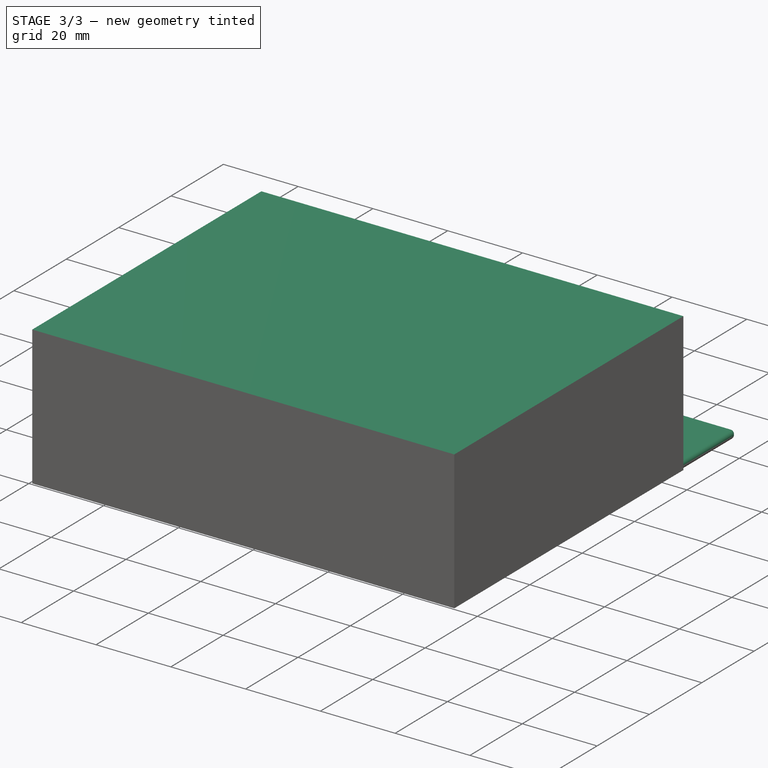
[diagram: stage 3 of 3 — iso view after this stage's code; geometry added in this stage tinted green]
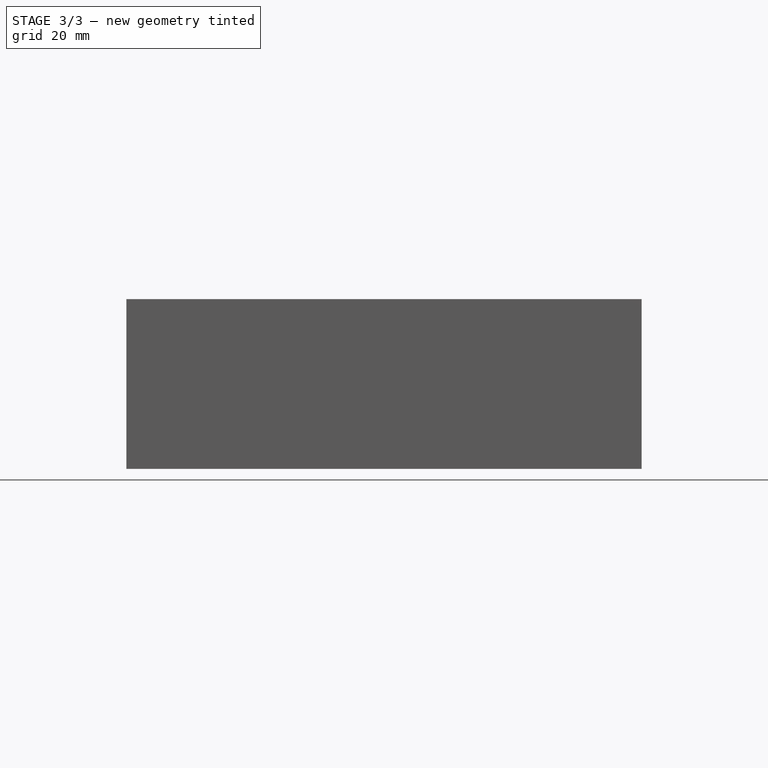
[diagram: stage 3 of 3 — front view after this stage's code; geometry added in this stage tinted green]
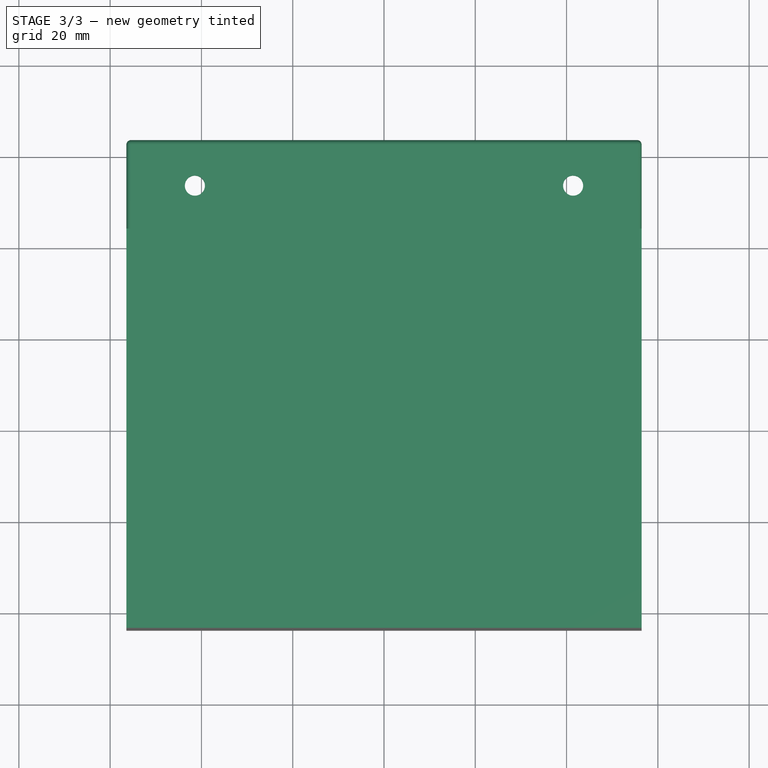
[diagram: stage 3 of 3 — top view after this stage's code; geometry added in this stage tinted green]
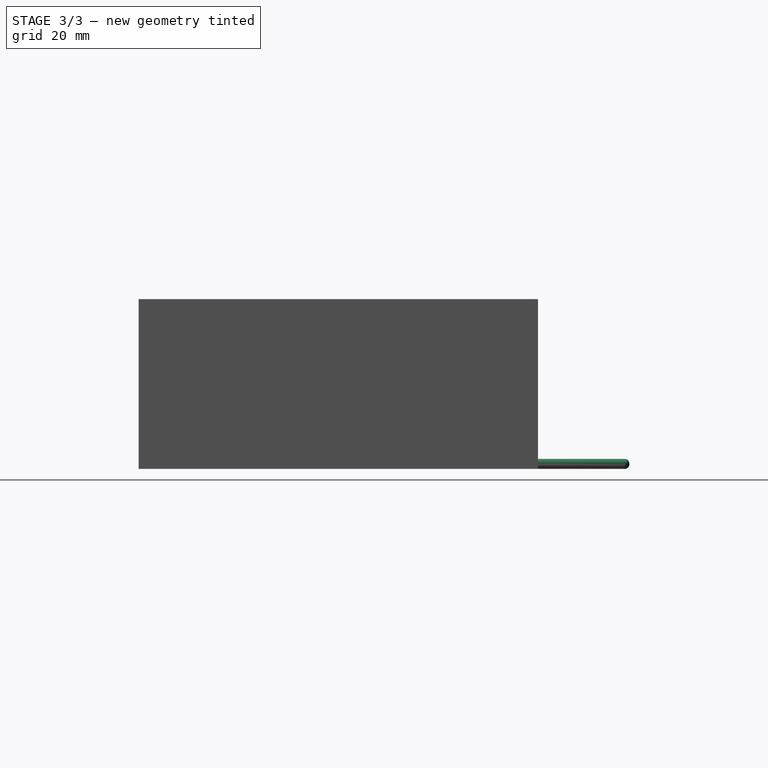
[diagram: stage 3 of 3 — right view after this stage's code; geometry added in this stage tinted green]
FEATURE [Sketcher::SketchObject] Sketch005  label="Flap"
  MapMode = 5
  Support = -> [XY_Plane001]
  expr: Constraints[80] = Screws.M4Radius
  expr: Constraints[62] = Screws.M3HeadRadius
  sketch-geometry (30):
    g0: LineSegment [constr] StartX=-54.835 StartY=42.15 StartZ=0 EndX=54.835 EndY=42.15 EndZ=0
    g1: LineSegment [constr] StartX=54.835 StartY=42.15 StartZ=0 EndX=54.835 EndY=-42.15 EndZ=0
    g2: LineSegment [constr] StartX=54.835 StartY=-42.15 StartZ=0 EndX=-54.835 EndY=-42.15 EndZ=0
    g3: LineSegment [constr] StartX=-54.835 StartY=-42.15 StartZ=0 EndX=-54.835 EndY=42.15 EndZ=0
    g4: LineSegment [constr] StartX=-55.235 StartY=42.55 StartZ=0 EndX=55.235 EndY=42.55 EndZ=0
    g5: LineSegment [constr] StartX=55.235 StartY=42.55 StartZ=0 EndX=55.235 EndY=-42.55 EndZ=0
    g6: LineSegment [constr] StartX=55.235 StartY=-42.55 StartZ=0 EndX=-55.235 EndY=-42.55 EndZ=0
    g7: LineSegment [constr] StartX=-55.235 StartY=-42.55 StartZ=0 EndX=-55.235 EndY=42.55 EndZ=0
    g8: LineSegment [constr] StartX=54.835 StartY=-42.15 StartZ=0 EndX=55.235 EndY=-42.15 EndZ=0
    g9: LineSegment [constr] StartX=54.835 StartY=-42.15 StartZ=0 EndX=54.835 EndY=-42.55 EndZ=0
    g10: LineSegment [constr] StartX=-54.835 StartY=42.15 StartZ=0 EndX=-54.835 EndY=42.55 EndZ=0
    g11: LineSegment [constr] StartX=-54.835 StartY=42.15 StartZ=0 EndX=-55.235 EndY=42.15 EndZ=0
    g12: LineSegment StartX=-56.435 StartY=43.75 StartZ=0 EndX=56.435 EndY=43.75 EndZ=0
    g13: LineSegment [constr] StartX=56.435 StartY=43.75 StartZ=0 EndX=56.435 EndY=-43.75 EndZ=0
    g14: LineSegment [constr] StartX=56.435 StartY=-43.75 StartZ=0 EndX=-56.435 EndY=-43.75 EndZ=0
    g15: LineSegment [constr] StartX=-56.435 StartY=-43.75 StartZ=0 EndX=-56.435 EndY=43.75 EndZ=0
    g16: LineSegment [constr] StartX=55.235 StartY=-42.55 StartZ=0 EndX=56.435 EndY=-42.55 EndZ=0
    g17: LineSegment [constr] StartX=55.235 StartY=-42.55 StartZ=0 EndX=55.235 EndY=-43.75 EndZ=0
    g18: LineSegment [constr] StartX=-55.235 StartY=42.55 StartZ=0 EndX=-55.235 EndY=43.75 EndZ=0
    g19: LineSegment [constr] StartX=-55.235 StartY=42.55 StartZ=0 EndX=-56.435 EndY=42.55 EndZ=0
    g20: Circle [constr] CenterX=-50.925 CenterY=38.05 CenterZ=0 NormalX=0 NormalY=0 NormalZ=1 AngleXU=0 Radius=3
    g21: Circle [constr] CenterX=50.925 CenterY=38.05 CenterZ=0 NormalX=0 NormalY=0 NormalZ=1 AngleXU=0 Radius=3
    g22: Circle [constr] CenterX=50.925 CenterY=-38.05 CenterZ=0 NormalX=0 NormalY=0 NormalZ=1 AngleXU=0 Radius=3
    g23: Circle [constr] CenterX=-50.925 CenterY=-38.05 CenterZ=0 NormalX=0 NormalY=0 NormalZ=1 AngleXU=0 Radius=3
    g24: LineSegment StartX=-56.435 StartY=43.75 StartZ=0 EndX=-56.435 EndY=63.75 EndZ=0
    g25: LineSegment StartX=-56.435 StartY=63.75 StartZ=0 EndX=56.435 EndY=63.75 EndZ=0
    g26: LineSegment StartX=56.435 StartY=63.75 StartZ=0 EndX=56.435 EndY=43.75 EndZ=0
    g27: LineSegment [constr] StartX=-56.435 StartY=53.75 StartZ=0 EndX=56.435 EndY=53.75 EndZ=0
    g28: Circle CenterX=-41.435 CenterY=53.75 CenterZ=0 NormalX=0 NormalY=0 NormalZ=1 AngleXU=0 Radius=2.2
    g29: Circle CenterX=41.435 CenterY=53.75 CenterZ=0 NormalX=0 NormalY=0 NormalZ=1 AngleXU=0 Radius=2.2
  constraints (84):
    c: Coincident(g0,g1)
    c: Coincident(g1,g2)
    c: Coincident(g2,g3)
    c: Coincident(g3,g0)
    c: Horizontal(g0)
    c: Horizontal(g2)
    c: Vertical(g1)
    c: Vertical(g3)
    c: Symmetric(g0,g1,g-1)
    c: DistanceX(g0,g0) = 109.67  'PCBWidth'
    c: DistanceY(g3,g3) = 84.3  'PCBLength'
    c: Coincident(g4,g5)
    c: Coincident(g5,g6)
    c: Coincident(g6,g7)
    c: Coincident(g7,g4)
    c: Horizontal(g4)
    c: Horizontal(g6)
    c: Vertical(g5)
    c: Vertical(g7)
    c: Coincident(g8,g1)
    c: PointOnObject(g8,g5)
    c: Horizontal(g8)
    c: Coincident(g9,g1)
    c: PointOnObject(g9,g6)
    c: Vertical(g9)
    c: DistanceY(g5,g8) = 0.4  'Tolerance'
    c: Coincident(g10,g0)
    c: PointOnObject(g10,g4)
    c: Vertical(g10)
    c: Coincident(g11,g0)
    c: PointOnObject(g11,g7)
    c: Horizontal(g11)
    c: Equal(g8,g9)
    c: Equal(g9,g10)
    c: Equal(g10,g11)
    c: Coincident(g12,g13)
    c: Coincident(g13,g14)
    c: Coincident(g14,g15)
    c: Coincident(g15,g12)
    c: Horizontal(g12)
    c: Horizontal(g14)
    c: Vertical(g13)
    c: Vertical(g15)
    c: Coincident(g16,g5)
    c: PointOnObject(g16,g13)
    c: Horizontal(g16)
    c: Coincident(g17,g5)
    c: PointOnObject(g17,g14)
    c: Vertical(g17)
    c: Coincident(g18,g4)
    c: PointOnObject(g18,g12)
    c: Vertical(g18)
    c: Coincident(g19,g4)
    c: PointOnObject(g19,g15)
    c: Horizontal(g19)
    c: Equal(g16,g17)
    c: Equal(g17,g18)
    c: Equal(g18,g19)
    c: DistanceY(g17,g17) = 1.2  'WallThickness'
    c: Equal(g20,g21)
    c: Equal(g21,g22)
    c: Equal(g22,g23)
    c: Radius(g20) = 3
    c: Symmetric(g23,g20,g-1)
    c: Symmetric(g20,g21,g-2)
    c: Symmetric(g23,g22,g-2)
    c: DistanceX(g20,g21) = 101.85  'HoleDX'
    c: DistanceY(g23,g20) = 76.1  'HoleDY'
    c: Coincident(g12,g24)
    c: Coincident(g24,g25)
    c: Horizontal(g25)
    c: Coincident(g25,g26)
    c: Coincident(g26,g12)
    c: Vertical(g26)
    c: DistanceY(g24,g24) = 20
    c: PointOnObject(g27,g24)
    c: PointOnObject(g27,g26)
    c: Horizontal(g27)
    c: Symmetric(g24,g24,g27)
    c: Equal(g29,g28)
    c: Radius(g28) = 2.2
    c: Symmetric(g28,g29,g-2)
    c: DistanceX(g27,g28) = 15
    c: PointOnObject(g28,g27)
FEATURE [PartDesign::Pad] Pad005  label="Flap_"
  BaseFeature = -> Pad003
  Length = 2.2
  Length2 = 100
  Profile = -> Sketch005
  Refine = true
  Type = 0
  expr: Length = Base_.Length
FEATURE [PartDesign::Fillet] Fillet
  Base = -> Pad005 [Face13,Face19,Edge73,Edge75,Edge72,Edge94,Edge80,Edge89,Edge87,Edge71,Edge88]
  BaseFeature = -> Pad005
  Radius = 1
FEATURE [PartDesign::Body] Body  label="BaseBody"
  Group = -> [Sketch,Pad,Sketch001,Pad001,Sketch003,Pad002,Sketch002,Pad003,Sketch005,Pad005,Fillet]
  Origin = -> Origin001
  Placement = pos=(0,0,-7.3) rot=(0,0,1;0rad)
  Tip = -> Fillet
  expr: Placement.Base.z = -PCBWalls.AttachmentOffset.Base.z - PCBWalls_.Length
FEATURE [App::Part] Part
  Group = -> [Body]
  License = CC BY 3.0
  LicenseURL = http://creativecommons.org/licenses/by/3.0/
  Origin = -> Origin
FEATURE [Sketcher::SketchObject] Sketch006  label="Top"
  AttachmentOffset = pos=(0,0,7.3) rot=(0,0,1;0rad)
  MapMode = 5
  Placement = pos=(0,0,35) rot=(0,0,1;0rad)
  expr: AttachmentOffset.Base.z = PCBWalls.AttachmentOffset.Base.z + PCBWalls_.Length
  expr: Constraints[52] = Flap.Constraints.HoleDY
  expr: Constraints[9] = Flap.Constraints.PCBWidth
  expr: Constraints[64] = Screws.M3HeadRadius + 1.2mm
  expr: Constraints[51] = Flap.Constraints.HoleDX
  expr: Constraints[115] = Flap.Constraints.Tolerance
  expr: Constraints[10] = Flap.Constraints.PCBLength
  expr: Constraints[47] = Screws.M3Radius
  expr: Constraints[43] = Flap.Constraints.WallThickness
  sketch-geometry (52):
    g0: LineSegment [constr] StartX=-54.835 StartY=42.15 StartZ=0 EndX=54.835 EndY=42.15 EndZ=0
    g1: LineSegment [constr] StartX=54.835 StartY=42.15 StartZ=0 EndX=54.835 EndY=-42.15 EndZ=0
    g2: LineSegment [constr] StartX=54.835 StartY=-42.15 StartZ=0 EndX=-54.835 EndY=-42.15 EndZ=0
    g3: LineSegment [constr] StartX=-54.835 StartY=-42.15 StartZ=0 EndX=-54.835 EndY=42.15 EndZ=0
    g4: LineSegment [constr] StartX=55.235 StartY=33.85 StartZ=0 EndX=55.235 EndY=-33.85 EndZ=0
    g5: LineSegment [constr] StartX=-55.235 StartY=-33.85 StartZ=0 EndX=-55.235 EndY=33.85 EndZ=0
    g6: LineSegment [constr] StartX=54.835 StartY=-42.15 StartZ=0 EndX=55.235 EndY=-42.15 EndZ=0
    g7: LineSegment [constr] StartX=54.835 StartY=-42.15 StartZ=0 EndX=54.835 EndY=-42.55 EndZ=0
    g8: LineSegment [constr] StartX=-54.835 StartY=42.15 StartZ=0 EndX=-54.835 EndY=42.55 EndZ=0
    g9: LineSegment [constr] StartX=-54.835 StartY=42.15 StartZ=0 EndX=-55.235 EndY=42.15 EndZ=0
    g10: LineSegment StartX=-56.435 StartY=43.75 StartZ=0 EndX=56.435 EndY=43.75 EndZ=0
    g11: LineSegment StartX=56.435 StartY=43.75 StartZ=0 EndX=56.435 EndY=-43.75 EndZ=0
    g12: LineSegment StartX=56.435 StartY=-43.75 StartZ=0 EndX=-56.435 EndY=-43.75 EndZ=0
    g13: LineSegment StartX=-56.435 StartY=-43.75 StartZ=0 EndX=-56.435 EndY=43.75 EndZ=0
    g14: LineSegment [constr] StartX=55.235 StartY=-42.55 StartZ=0 EndX=56.435 EndY=-42.55 EndZ=0
    g15: LineSegment [constr] StartX=55.235 StartY=-42.55 StartZ=0 EndX=55.235 EndY=-43.75 EndZ=0
    g16: LineSegment [constr] StartX=-55.235 StartY=42.55 StartZ=0 EndX=-55.235 EndY=43.75 EndZ=0
    g17: LineSegment [constr] StartX=-55.235 StartY=42.55 StartZ=0 EndX=-56.435 EndY=42.55 EndZ=0
    g18: Circle [constr] CenterX=-50.925 CenterY=38.05 CenterZ=0 NormalX=0 NormalY=0 NormalZ=1 AngleXU=0 Radius=1.75
    g19: Circle [constr] CenterX=50.925 CenterY=38.05 CenterZ=0 NormalX=0 NormalY=0 NormalZ=1 AngleXU=0 Radius=1.75
    g20: Circle [constr] CenterX=50.925 CenterY=-38.05 CenterZ=0 NormalX=0 NormalY=0 NormalZ=1 AngleXU=0 Radius=1.75
    g21: Circle [constr] CenterX=-50.925 CenterY=-38.05 CenterZ=0 NormalX=0 NormalY=0 NormalZ=1 AngleXU=0 Radius=1.75
    g22: LineSegment [constr] StartX=-55.235 StartY=33.85 StartZ=0 EndX=-50.925 EndY=33.85 EndZ=0
    g23: LineSegment [constr] StartX=-46.725 StartY=42.55 StartZ=0 EndX=-46.725 EndY=38.05 EndZ=0
    g24: ArcOfCircle [constr] CenterX=-50.925 CenterY=38.05 CenterZ=0 NormalX=0 NormalY=0 NormalZ=1 AngleXU=0 Radius=4.2 StartAngle=4.71239 EndAngle=6.28319
    g25: LineSegment [constr] StartX=-50.925 StartY=38.05 StartZ=0 EndX=-46.725 EndY=38.05 EndZ=0
    g26: LineSegment [constr] StartX=-50.925 StartY=38.05 StartZ=0 EndX=-50.925 EndY=33.85 EndZ=0
    g27: LineSegment [constr] StartX=-46.725 StartY=42.55 StartZ=0 EndX=46.725 EndY=42.55 EndZ=0
    g28: LineSegment [constr] StartX=-55.235 StartY=33.85 StartZ=0 EndX=-55.235 EndY=42.55 EndZ=0
    g29: LineSegment [constr] StartX=-55.235 StartY=42.55 StartZ=0 EndX=-46.725 EndY=42.55 EndZ=0
    g30: ArcOfCircle [constr] CenterX=50.925 CenterY=38.05 CenterZ=0 NormalX=0 NormalY=0 NormalZ=1 AngleXU=0 Radius=4.2 StartAngle=3.14159 EndAngle=4.71239
    g31: LineSegment [constr] StartX=46.725 StartY=38.05 StartZ=0 EndX=50.925 EndY=38.05 EndZ=0
    g32: LineSegment [constr] StartX=50.925 StartY=33.85 StartZ=0 EndX=50.925 EndY=38.05 EndZ=0
    g33: LineSegment [constr] StartX=46.725 StartY=38.05 StartZ=0 EndX=46.725 EndY=42.55 EndZ=0
    g34: LineSegment [constr] StartX=50.925 StartY=33.85 StartZ=0 EndX=55.235 EndY=33.85 EndZ=0
    g35: ArcOfCircle [constr] CenterX=50.925 CenterY=-38.05 CenterZ=0 NormalX=0 NormalY=0 NormalZ=1 AngleXU=0 Radius=4.2 StartAngle=1.5708 EndAngle=3.14159
    g36: LineSegment [constr] StartX=50.925 StartY=-33.85 StartZ=0 EndX=55.235 EndY=-33.85 EndZ=0
    g37: LineSegment [constr] StartX=46.725 StartY=-38.05 StartZ=0 EndX=46.725 EndY=-42.55 EndZ=0
    g38: LineSegment [constr] StartX=46.725 StartY=-42.55 StartZ=0 EndX=-46.725 EndY=-42.55 EndZ=0
    g39: LineSegment [constr] StartX=46.725 StartY=-42.55 StartZ=0 EndX=55.235 EndY=-42.55 EndZ=0
    g40: LineSegment [constr] StartX=55.235 StartY=-42.55 StartZ=0 EndX=55.235 EndY=-33.85 EndZ=0
    g41: LineSegment [constr] StartX=50.925 StartY=-38.05 StartZ=0 EndX=50.925 EndY=-33.85 EndZ=0
    g42: LineSegment [constr] StartX=50.925 StartY=-38.05 StartZ=0 EndX=46.725 EndY=-38.05 EndZ=0
    g43: ArcOfCircle [constr] CenterX=-50.925 CenterY=-38.05 CenterZ=0 NormalX=0 NormalY=0 NormalZ=1 AngleXU=0 Radius=4.2 StartAngle=0 EndAngle=1.5708
    g44: LineSegment [constr] StartX=-50.925 StartY=-33.85 StartZ=0 EndX=-55.235 EndY=-33.85 EndZ=0
    g45: LineSegment [constr] StartX=-46.725 StartY=-38.05 StartZ=0 EndX=-46.725 EndY=-42.55 EndZ=0
    g46: LineSegment [constr] StartX=-50.925 StartY=-38.05 StartZ=0 EndX=-50.925 EndY=-33.85 EndZ=0
    g47: LineSegment [constr] StartX=-50.925 StartY=-38.05 StartZ=0 EndX=-46.725 EndY=-38.05 EndZ=0
    g48: LineSegment [constr] StartX=46.725 StartY=42.55 StartZ=0 EndX=55.235 EndY=42.55 EndZ=0
    g49: LineSegment [constr] StartX=55.235 StartY=42.55 StartZ=0 EndX=55.235 EndY=33.85 EndZ=0
    g50: LineSegment [constr] StartX=-55.235 StartY=-33.85 StartZ=0 EndX=-55.235 EndY=-42.55 EndZ=0
    g51: LineSegment [constr] StartX=-55.235 StartY=-42.55 StartZ=0 EndX=-46.725 EndY=-42.55 EndZ=0
  constraints (140):
    c: Coincident(g0,g1)
    c: Coincident(g1,g2)
    c: Coincident(g2,g3)
    c: Coincident(g3,g0)
    c: Horizontal(g0)
    c: Horizontal(g2)
    c: Vertical(g1)
    c: Vertical(g3)
    c: Symmetric(g0,g1,g-1)
    c: DistanceX(g0,g0) = 109.67
    c: DistanceY(g3,g3) = 84.3
    c: Vertical(g4)
    c: Vertical(g5)
    c: Coincident(g6,g1)
    c: Horizontal(g6)
    c: Coincident(g7,g1)
    c: Vertical(g7)
    c: Coincident(g8,g0)
    c: Vertical(g8)
    c: Coincident(g9,g0)
    c: Horizontal(g9)
    c: Equal(g6,g7)
    c: Equal(g7,g8)
    c: Equal(g8,g9)
    c: Coincident(g10,g11)
    c: Coincident(g11,g12)
    c: Coincident(g12,g13)
    c: Coincident(g13,g10)
    c: Horizontal(g10)
    c: Horizontal(g12)
    c: Vertical(g11)
    c: Vertical(g13)
    c: PointOnObject(g14,g11)
    c: Horizontal(g14)
    c: PointOnObject(g15,g12)
    c: Vertical(g15)
    c: PointOnObject(g16,g10)
    c: Vertical(g16)
    c: PointOnObject(g17,g13)
    c: Horizontal(g17)
    c: Equal(g14,g15)
    c: Equal(g15,g16)
    c: Equal(g16,g17)
    c: DistanceY(g15,g15) = 1.2
    c: Equal(g18,g19)
    c: Equal(g19,g20)
    c: Equal(g20,g21)
    c: Radius(g18) = 1.75
    c: Symmetric(g21,g18,g-1)
    c: Symmetric(g18,g19,g-2)
    c: Symmetric(g21,g20,g-2)
    c: DistanceX(g18,g19) = 101.85
    c: DistanceY(g21,g18) = 76.1
    c: Horizontal(g22)
    c: Vertical(g23)
    c: Coincident(g24,g18)
    c: Coincident(g24,g22)
    c: Coincident(g24,g23)
    c: Coincident(g25,g24)
    c: Coincident(g25,g23)
    c: Horizontal(g25)
    c: Coincident(g26,g24)
    c: Coincident(g26,g22)
    c: Vertical(g26)
    c: Radius(g24) = 4.2
    c: Coincident(g5,g22)
    c: Coincident(g27,g23)
    c: Coincident(g28,g5)
    c: Coincident(g28,g16)
    c: Vertical(g28)
    c: Coincident(g29,g16)
    c: Coincident(g29,g23)
    c: Horizontal(g29)
    c: PointOnObject(g8,g29)
    c: PointOnObject(g9,g28)
    c: Coincident(g16,g17)
    c: Horizontal(g27)
    c: Coincident(g30,g19)
    c: Equal(g30,g24)
    c: Coincident(g31,g30)
    c: Coincident(g31,g30)
    c: Horizontal(g31)
    c: Coincident(g32,g30)
    c: Coincident(g32,g30)
    c: Vertical(g32)
    c: Coincident(g33,g30)
    c: Vertical(g33)
    c: Coincident(g34,g30)
    c: Horizontal(g34)
    c: Coincident(g27,g33)
    c: Coincident(g4,g34)
    c: Coincident(g35,g20)
    c: Coincident(g36,g35)
    c: Horizontal(g36)
    c: Coincident(g37,g35)
    c: Vertical(g37)
    c: Equal(g30,g35)
    c: Coincident(g4,g36)
    c: Coincident(g39,g37)
    c: Coincident(g39,g14)
    c: Horizontal(g39)
    c: PointOnObject(g7,g39)
    c: Coincident(g14,g15)
    c: Coincident(g40,g14)
    c: Coincident(g40,g4)
    c: Vertical(g40)
    c: PointOnObject(g6,g40)
    c: Horizontal(g38)
    c: Coincident(g41,g35)
    c: Coincident(g41,g35)
    c: Vertical(g41)
    c: Coincident(g42,g35)
    c: Coincident(g42,g35)
    c: Horizontal(g42)
    c: Coincident(g37,g38)
    c: DistanceY(g14,g6) = 0.4
    c: Coincident(g43,g21)
    c: Coincident(g44,g43)
    c: Horizontal(g44)
    c: Coincident(g45,g43)
    c: Vertical(g45)
    c: Equal(g43,g35)
    c: Coincident(g46,g43)
    c: Coincident(g46,g43)
    c: Vertical(g46)
    c: Coincident(g47,g43)
    c: Coincident(g47,g43)
    c: Horizontal(g47)
    c: Coincident(g5,g44)
    c: Coincident(g38,g45)
    c: Coincident(g48,g27)
    c: Horizontal(g48)
    c: Coincident(g49,g48)
    c: Coincident(g49,g4)
    c: Vertical(g49)
    c: Coincident(g5,g50)
    c: Vertical(g50)
    c: Coincident(g50,g51)
    c: Coincident(g51,g38)
    c: Horizontal(g51)
FEATURE [PartDesign::Pad] Pad006  label="Top_"
  BaseFeature = -> Pad004
  Length = 2.2
  Length2 = 100
  Profile = -> Sketch006
  Refine = true
  Type = 0
  expr: Length = Base_.Length
FEATURE [Sketcher::SketchObject] Sketch007  label="TopScrewHoles"
  AttachmentOffset = pos=(0,0,7.3) rot=(0,0,1;0rad)
  MapMode = 5
  Placement = pos=(0,0,35) rot=(0,0,1;0rad)
  expr: Placement.Base.z = Walls.Placement.Base.z + Walls_.Length
  expr: AttachmentOffset.Base.z = PCBWalls.AttachmentOffset.Base.z + PCBWalls_.Length
  expr: Constraints[52] = Flap.Constraints.HoleDY
  expr: Constraints[9] = Flap.Constraints.PCBWidth
  expr: Constraints[64] = Screws.M3HeadRadius + 1.2mm
  expr: Constraints[51] = Flap.Constraints.HoleDX
  expr: Constraints[115] = Flap.Constraints.Tolerance
  expr: Constraints[10] = Flap.Constraints.PCBLength
  expr: Constraints[47] = Screws.M3Radius
  expr: Constraints[43] = Flap.Constraints.WallThickness
  sketch-geometry (52):
    g0: LineSegment [constr] StartX=-54.835 StartY=42.15 StartZ=0 EndX=54.835 EndY=42.15 EndZ=0
    g1: LineSegment [constr] StartX=54.835 StartY=42.15 StartZ=0 EndX=54.835 EndY=-42.15 EndZ=0
    g2: LineSegment [constr] StartX=54.835 StartY=-42.15 StartZ=0 EndX=-54.835 EndY=-42.15 EndZ=0
    g3: LineSegment [constr] StartX=-54.835 StartY=-42.15 StartZ=0 EndX=-54.835 EndY=42.15 EndZ=0
    g4: LineSegment [constr] StartX=55.235 StartY=33.85 StartZ=0 EndX=55.235 EndY=-33.85 EndZ=0
    g5: LineSegment [constr] StartX=-55.235 StartY=-33.85 StartZ=0 EndX=-55.235 EndY=33.85 EndZ=0
    g6: LineSegment [constr] StartX=54.835 StartY=-42.15 StartZ=0 EndX=55.235 EndY=-42.15 EndZ=0
    g7: LineSegment [constr] StartX=54.835 StartY=-42.15 StartZ=0 EndX=54.835 EndY=-42.55 EndZ=0
    g8: LineSegment [constr] StartX=-54.835 StartY=42.15 StartZ=0 EndX=-54.835 EndY=42.55 EndZ=0
    g9: LineSegment [constr] StartX=-54.835 StartY=42.15 StartZ=0 EndX=-55.235 EndY=42.15 EndZ=0
    g10: LineSegment StartX=-56.435 StartY=43.75 StartZ=0 EndX=56.435 EndY=43.75 EndZ=0
    g11: LineSegment StartX=56.435 StartY=43.75 StartZ=0 EndX=56.435 EndY=-43.75 EndZ=0
    g12: LineSegment StartX=56.435 StartY=-43.75 StartZ=0 EndX=-56.435 EndY=-43.75 EndZ=0
    g13: LineSegment StartX=-56.435 StartY=-43.75 StartZ=0 EndX=-56.435 EndY=43.75 EndZ=0
    g14: LineSegment [constr] StartX=55.235 StartY=-42.55 StartZ=0 EndX=56.435 EndY=-42.55 EndZ=0
    g15: LineSegment [constr] StartX=55.235 StartY=-42.55 StartZ=0 EndX=55.235 EndY=-43.75 EndZ=0
    g16: LineSegment [constr] StartX=-55.235 StartY=42.55 StartZ=0 EndX=-55.235 EndY=43.75 EndZ=0
    g17: LineSegment [constr] StartX=-55.235 StartY=42.55 StartZ=0 EndX=-56.435 EndY=42.55 EndZ=0
    g18: Circle [constr] CenterX=-50.925 CenterY=38.05 CenterZ=0 NormalX=0 NormalY=0 NormalZ=1 AngleXU=0 Radius=1.75
    g19: Circle [constr] CenterX=50.925 CenterY=38.05 CenterZ=0 NormalX=0 NormalY=0 NormalZ=1 AngleXU=0 Radius=1.75
    g20: Circle [constr] CenterX=50.925 CenterY=-38.05 CenterZ=0 NormalX=0 NormalY=0 NormalZ=1 AngleXU=0 Radius=1.75
    g21: Circle [constr] CenterX=-50.925 CenterY=-38.05 CenterZ=0 NormalX=0 NormalY=0 NormalZ=1 AngleXU=0 Radius=1.75
    g22: LineSegment [constr] StartX=-55.235 StartY=33.85 StartZ=0 EndX=-50.925 EndY=33.85 EndZ=0
    g23: LineSegment [constr] StartX=-46.725 StartY=42.55 StartZ=0 EndX=-46.725 EndY=38.05 EndZ=0
    g24: ArcOfCircle [constr] CenterX=-50.925 CenterY=38.05 CenterZ=0 NormalX=0 NormalY=0 NormalZ=1 AngleXU=0 Radius=4.2 StartAngle=4.71239 EndAngle=6.28319
    g25: LineSegment [constr] StartX=-50.925 StartY=38.05 StartZ=0 EndX=-46.725 EndY=38.05 EndZ=0
    g26: LineSegment [constr] StartX=-50.925 StartY=38.05 StartZ=0 EndX=-50.925 EndY=33.85 EndZ=0
    g27: LineSegment [constr] StartX=-46.725 StartY=42.55 StartZ=0 EndX=46.725 EndY=42.55 EndZ=0
    g28: LineSegment [constr] StartX=-55.235 StartY=33.85 StartZ=0 EndX=-55.235 EndY=42.55 EndZ=0
    g29: LineSegment [constr] StartX=-55.235 StartY=42.55 StartZ=0 EndX=-46.725 EndY=42.55 EndZ=0
    g30: ArcOfCircle [constr] CenterX=50.925 CenterY=38.05 CenterZ=0 NormalX=0 NormalY=0 NormalZ=1 AngleXU=0 Radius=4.2 StartAngle=3.14159 EndAngle=4.71239
    g31: LineSegment [constr] StartX=46.725 StartY=38.05 StartZ=0 EndX=50.925 EndY=38.05 EndZ=0
    g32: LineSegment [constr] StartX=50.925 StartY=33.85 StartZ=0 EndX=50.925 EndY=38.05 EndZ=0
    g33: LineSegment [constr] StartX=46.725 StartY=38.05 StartZ=0 EndX=46.725 EndY=42.55 EndZ=0
    g34: LineSegment [constr] StartX=50.925 StartY=33.85 StartZ=0 EndX=55.235 EndY=33.85 EndZ=0
    g35: ArcOfCircle [constr] CenterX=50.925 CenterY=-38.05 CenterZ=0 NormalX=0 NormalY=0 NormalZ=1 AngleXU=0 Radius=4.2 StartAngle=1.5708 EndAngle=3.14159
    g36: LineSegment [constr] StartX=50.925 StartY=-33.85 StartZ=0 EndX=55.235 EndY=-33.85 EndZ=0
    g37: LineSegment [constr] StartX=46.725 StartY=-38.05 StartZ=0 EndX=46.725 EndY=-42.55 EndZ=0
    g38: LineSegment [constr] StartX=46.725 StartY=-42.55 StartZ=0 EndX=-46.725 EndY=-42.55 EndZ=0
    g39: LineSegment [constr] StartX=46.725 StartY=-42.55 StartZ=0 EndX=55.235 EndY=-42.55 EndZ=0
    g40: LineSegment [constr] StartX=55.235 StartY=-42.55 StartZ=0 EndX=55.235 EndY=-33.85 EndZ=0
    g41: LineSegment [constr] StartX=50.925 StartY=-38.05 StartZ=0 EndX=50.925 EndY=-33.85 EndZ=0
    g42: LineSegment [constr] StartX=50.925 StartY=-38.05 StartZ=0 EndX=46.725 EndY=-38.05 EndZ=0
    g43: ArcOfCircle [constr] CenterX=-50.925 CenterY=-38.05 CenterZ=0 NormalX=0 NormalY=0 NormalZ=1 AngleXU=0 Radius=4.2 StartAngle=0 EndAngle=1.5708
    g44: LineSegment [constr] StartX=-50.925 StartY=-33.85 StartZ=0 EndX=-55.235 EndY=-33.85 EndZ=0
    g45: LineSegment [constr] StartX=-46.725 StartY=-38.05 StartZ=0 EndX=-46.725 EndY=-42.55 EndZ=0
    g46: LineSegment [constr] StartX=-50.925 StartY=-38.05 StartZ=0 EndX=-50.925 EndY=-33.85 EndZ=0
    g47: LineSegment [constr] StartX=-50.925 StartY=-38.05 StartZ=0 EndX=-46.725 EndY=-38.05 EndZ=0
    g48: LineSegment [constr] StartX=46.725 StartY=42.55 StartZ=0 EndX=55.235 EndY=42.55 EndZ=0
    g49: LineSegment [constr] StartX=55.235 StartY=42.55 StartZ=0 EndX=55.235 EndY=33.85 EndZ=0
    g50: LineSegment [constr] StartX=-55.235 StartY=-33.85 StartZ=0 EndX=-55.235 EndY=-42.55 EndZ=0
    g51: LineSegment [constr] StartX=-55.235 StartY=-42.55 StartZ=0 EndX=-46.725 EndY=-42.55 EndZ=0
  constraints (140):
    c: Coincident(g0,g1)
    c: Coincident(g1,g2)
    c: Coincident(g2,g3)
    c: Coincident(g3,g0)
    c: Horizontal(g0)
    c: Horizontal(g2)
    c: Vertical(g1)
    c: Vertical(g3)
    c: Symmetric(g0,g1,g-1)
    c: DistanceX(g0,g0) = 109.67
    c: DistanceY(g3,g3) = 84.3
    c: Vertical(g4)
    c: Vertical(g5)
    c: Coincident(g6,g1)
    c: Horizontal(g6)
    c: Coincident(g7,g1)
    c: Vertical(g7)
    c: Coincident(g8,g0)
    c: Vertical(g8)
    c: Coincident(g9,g0)
    c: Horizontal(g9)
    c: Equal(g6,g7)
    c: Equal(g7,g8)
    c: Equal(g8,g9)
    c: Coincident(g10,g11)
    c: Coincident(g11,g12)
    c: Coincident(g12,g13)
    c: Coincident(g13,g10)
    c: Horizontal(g10)
    c: Horizontal(g12)
    c: Vertical(g11)
    c: Vertical(g13)
    c: PointOnObject(g14,g11)
    c: Horizontal(g14)
    c: PointOnObject(g15,g12)
    c: Vertical(g15)
    c: PointOnObject(g16,g10)
    c: Vertical(g16)
    c: PointOnObject(g17,g13)
    c: Horizontal(g17)
    c: Equal(g14,g15)
    c: Equal(g15,g16)
    c: Equal(g16,g17)
    c: DistanceY(g15,g15) = 1.2
    c: Equal(g18,g19)
    c: Equal(g19,g20)
    c: Equal(g20,g21)
    c: Radius(g18) = 1.75
    c: Symmetric(g21,g18,g-1)
    c: Symmetric(g18,g19,g-2)
    c: Symmetric(g21,g20,g-2)
    c: DistanceX(g18,g19) = 101.85
    c: DistanceY(g21,g18) = 76.1
    c: Horizontal(g22)
    c: Vertical(g23)
    c: Coincident(g24,g18)
    c: Coincident(g24,g22)
    c: Coincident(g24,g23)
    c: Coincident(g25,g24)
    c: Coincident(g25,g23)
    c: Horizontal(g25)
    c: Coincident(g26,g24)
    c: Coincident(g26,g22)
    c: Vertical(g26)
    c: Radius(g24) = 4.2
    c: Coincident(g5,g22)
    c: Coincident(g27,g23)
    c: Coincident(g28,g5)
    c: Coincident(g28,g16)
    c: Vertical(g28)
    c: Coincident(g29,g16)
    c: Coincident(g29,g23)
    c: Horizontal(g29)
    c: PointOnObject(g8,g29)
    c: PointOnObject(g9,g28)
    c: Coincident(g16,g17)
    c: Horizontal(g27)
    c: Coincident(g30,g19)
    c: Equal(g30,g24)
    c: Coincident(g31,g30)
    c: Coincident(g31,g30)
    c: Horizontal(g31)
    c: Coincident(g32,g30)
    c: Coincident(g32,g30)
    c: Vertical(g32)
    c: Coincident(g33,g30)
    c: Vertical(g33)
    c: Coincident(g34,g30)
    c: Horizontal(g34)
    c: Coincident(g27,g33)
    c: Coincident(g4,g34)
    c: Coincident(g35,g20)
    c: Coincident(g36,g35)
    c: Horizontal(g36)
    c: Coincident(g37,g35)
    c: Vertical(g37)
    c: Equal(g30,g35)
    c: Coincident(g4,g36)
    c: Coincident(g39,g37)
    c: Coincident(g39,g14)
    c: Horizontal(g39)
    c: PointOnObject(g7,g39)
    c: Coincident(g14,g15)
    c: Coincident(g40,g14)
    c: Coincident(g40,g4)
    c: Vertical(g40)
    c: PointOnObject(g6,g40)
    c: Horizontal(g38)
    c: Coincident(g41,g35)
    c: Coincident(g41,g35)
    c: Vertical(g41)
    c: Coincident(g42,g35)
    c: Coincident(g42,g35)
    c: Horizontal(g42)
    c: Coincident(g37,g38)
    c: DistanceY(g14,g6) = 0.4
    c: Coincident(g43,g21)
    c: Coincident(g44,g43)
    c: Horizontal(g44)
    c: Coincident(g45,g43)
    c: Vertical(g45)
    c: Equal(g43,g35)
    c: Coincident(g46,g43)
    c: Coincident(g46,g43)
    c: Vertical(g46)
    c: Coincident(g47,g43)
    c: Coincident(g47,g43)
    c: Horizontal(g47)
    c: Coincident(g5,g44)
    c: Coincident(g38,g45)
    c: Coincident(g48,g27)
    c: Horizontal(g48)
    c: Coincident(g49,g48)
    c: Coincident(g49,g4)
    c: Vertical(g49)
    c: Coincident(g5,g50)
    c: Vertical(g50)
    c: Coincident(g50,g51)
    c: Coincident(g51,g38)
    c: Horizontal(g51)
FEATURE [PartDesign::Body] Body001  label="CoverBody"
  Group = -> [Sketch004,Pad004,Sketch006,Pad006,Sketch007]
  Origin = -> Origin002
  Tip = -> Pad006
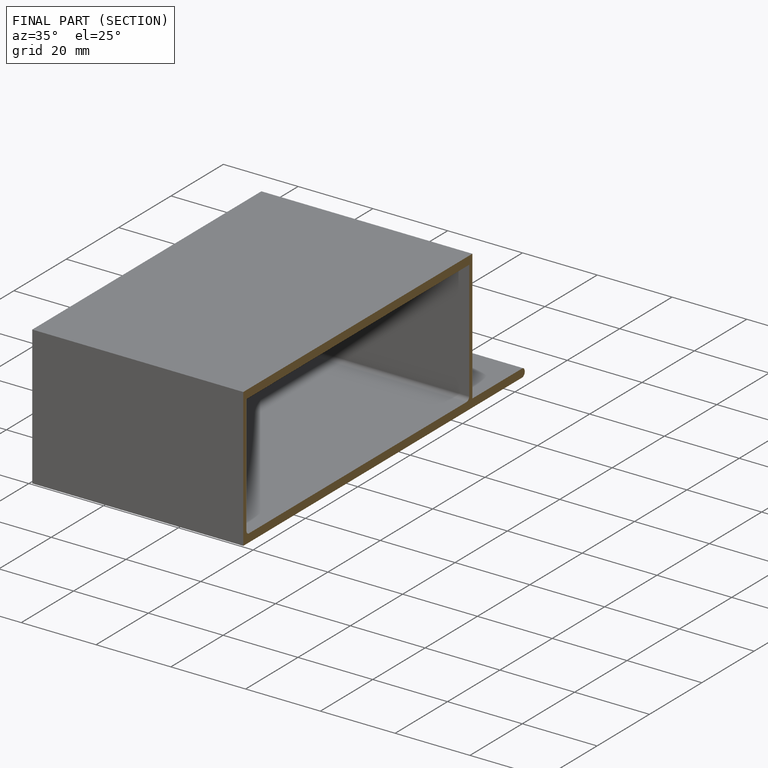
[diagram: finished part — half-section view (interior)]
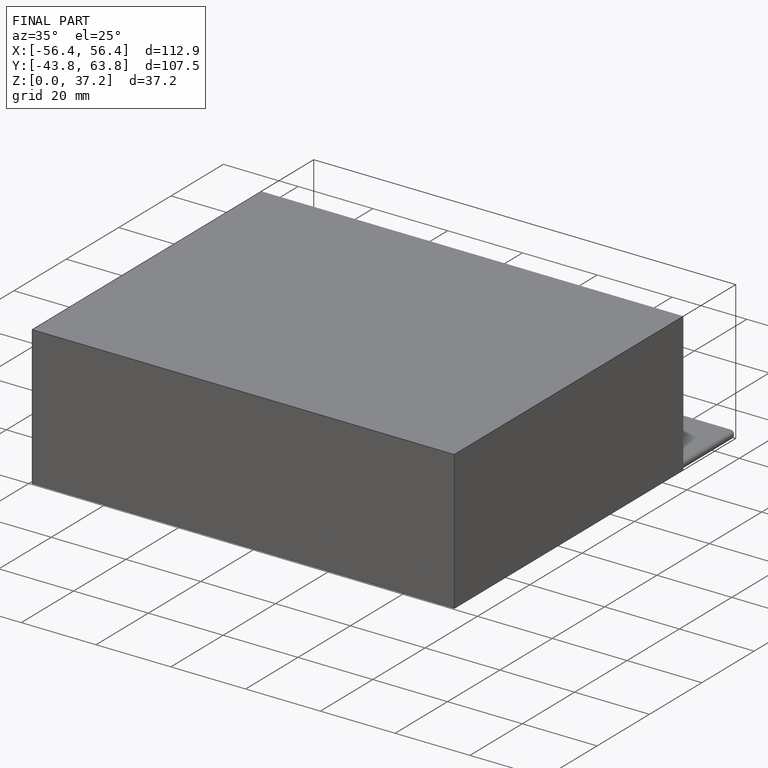
[diagram: finished part — iso view with bounding-box wireframe]
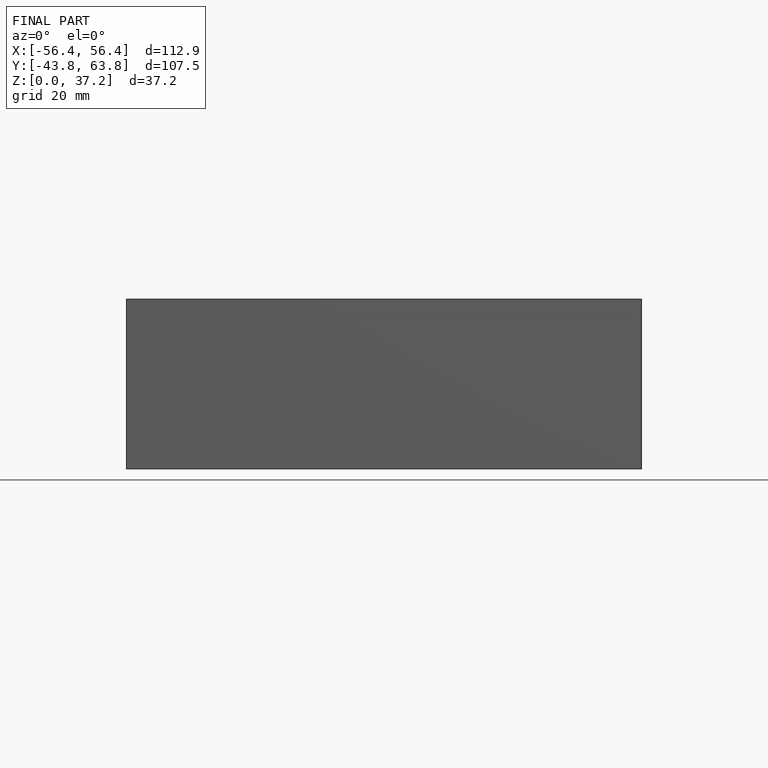
[diagram: finished part — front view with bounding-box wireframe]
